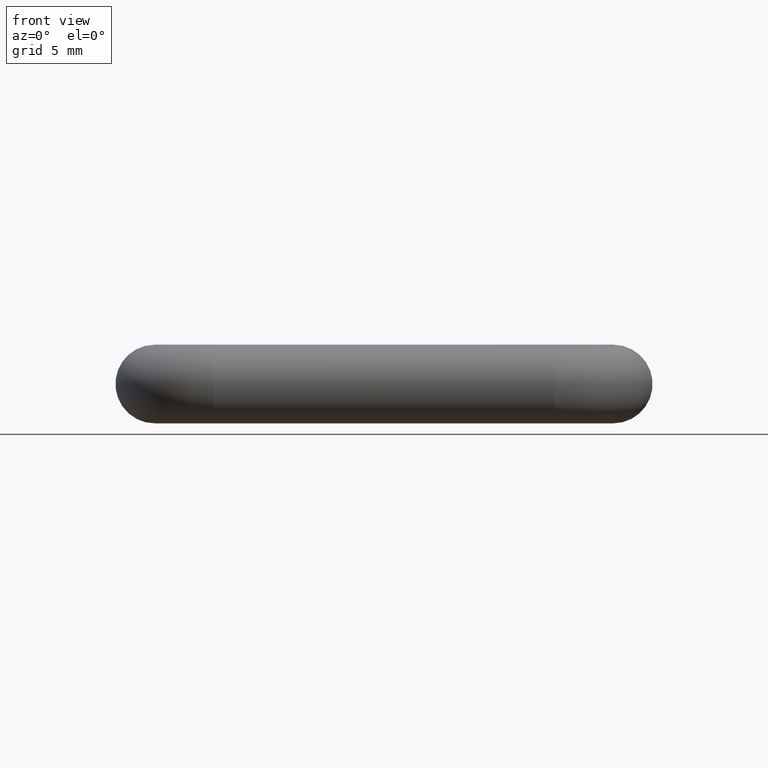
[diagram: clean part render]
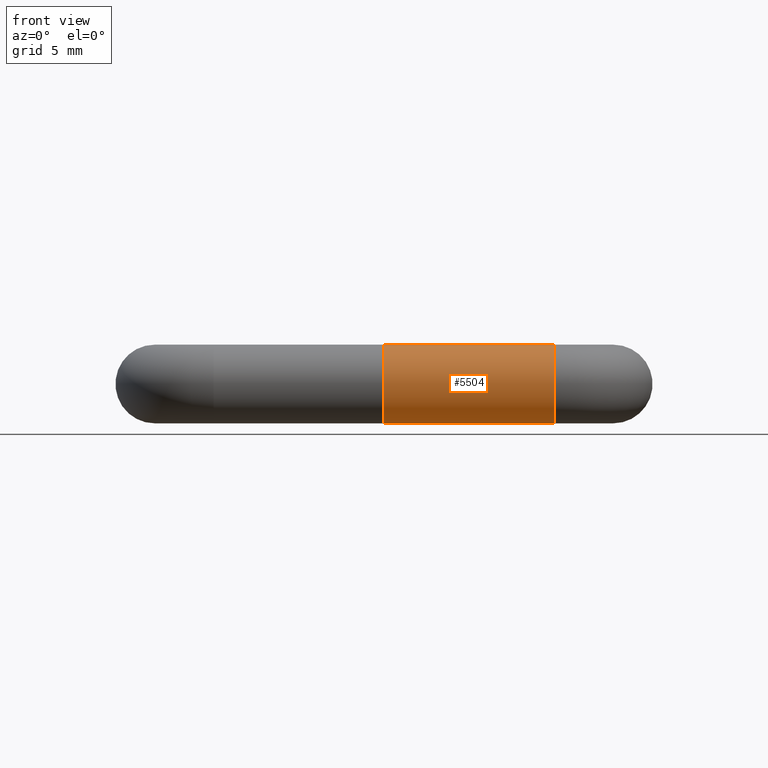
[diagram: same view with one face highlighted and labeled with its STEP entity id]
A machine part, front view. The second image highlights one B-rep face of the part: STEP entity #5504.
In plain terms, the highlighted cylindrical surface (bore or boss wall) has radius 2 mm, axis along (-1, -0, -0).
Its self-contained STEP definition (entity closure, byte-faithful):
#15 = CARTESIAN_POINT ( 'NONE',  ( 1.567377904642425700, 3.981558145509734200, -0.2709762268132759300 ) ) ;
#21 = EDGE_CURVE ( 'NONE', #3868, #9993, #4451, .T. ) ;
#25 = ORIENTED_EDGE ( 'NONE', *, *, #2863, .F. ) ;
#48 = CARTESIAN_POINT ( 'NONE',  ( 1.595915547958127500, 3.996902927270146800, -0.1114877634609954400 ) ) ;
#51 = VERTEX_POINT ( 'NONE', #7147 ) ;
#82 = CARTESIAN_POINT ( 'NONE',  ( 0.2962948104395614100, 3.981576364413640600, -0.2708420080803531900 ) ) ;
#88 = ORIENTED_EDGE ( 'NONE', *, *, #2275, .F. ) ;
#100 = VERTEX_POINT ( 'NONE', #1222 ) ;
#101 = CARTESIAN_POINT ( 'NONE',  ( 8.660254037844334000, 4.000000000000000000, -7.256253074635414900E-016 ) ) ;
#128 = VERTEX_POINT ( 'NONE', #8096 ) ;
#139 = CARTESIAN_POINT ( 'NONE',  ( 8.660254037844334000, 4.000000000000000000, -6.882382537395717900E-016 ) ) ;
#148 = VERTEX_POINT ( 'NONE', #4665 ) ;
#157 = CARTESIAN_POINT ( 'NONE',  ( 0.3366109681443744700, 3.999988938514548400, 0.006653045764452780400 ) ) ;
#184 = CARTESIAN_POINT ( 'NONE',  ( 0.7033460924908433400, 3.981576364413640600, -0.2708420080803525300 ) ) ;
#201 = CARTESIAN_POINT ( 'NONE',  ( 0.5813690245760107000, 3.999969524392379400, -0.01104090132344854600 ) ) ;
#241 = CARTESIAN_POINT ( 'NONE',  ( 0.5311277210202988200, 3.999988493665080500, 0.006784188034187494900 ) ) ;
#273 = CARTESIAN_POINT ( 'NONE',  ( 0.8257191393821969900, 3.997018523621627600, -0.1111769674444958000 ) ) ;
#284 = CARTESIAN_POINT ( 'NONE',  ( 0.2492528760846173300, 3.999392873006619300, -0.05132271581417635600 ) ) ;
#285 = ORIENTED_EDGE ( 'NONE', *, *, #3996, .F. ) ;
#313 = CARTESIAN_POINT ( 'NONE',  ( 0.7613012284685960500, 3.999998725372322400, 0.002257987849199961600 ) ) ;
#338 = EDGE_LOOP ( 'NONE', ( #9051, #4514, #4253, #6128, #4351, #6693, #3853, #8687, #4109, #5692 ) ) ;
#347 = CARTESIAN_POINT ( 'NONE',  ( 1.406022970085469600, 3.981504395237832400, -0.2713675213675220100 ) ) ;
#366 = CARTESIAN_POINT ( 'NONE',  ( 0.2571240304319956100, 3.999658153789186000, -0.03697658701360247200 ) ) ;
#390 = ORIENTED_EDGE ( 'NONE', *, *, #7245, .F. ) ;
#406 = CARTESIAN_POINT ( 'NONE',  ( 1.591821227577104200, 3.995043946327846200, -0.1410914540310343200 ) ) ;
#413 = VERTEX_POINT ( 'NONE', #775 ) ;
#427 = ORIENTED_EDGE ( 'NONE', *, *, #8195, .F. ) ;
#436 = CARTESIAN_POINT ( 'NONE',  ( 0.5662645735929305900, 4.000002193865281400, -0.0008142082656098650200 ) ) ;
#468 = VERTEX_POINT ( 'NONE', #6382 ) ;
#480 = EDGE_LOOP ( 'NONE', ( #8659, #10579, #7242, #2697, #8924, #7672 ) ) ;
#509 =( BOUNDED_CURVE ( )  B_SPLINE_CURVE ( 3, ( #6833, #5886, #3311, #6862 ),
 .UNSPECIFIED., .F., .F. ) 
 B_SPLINE_CURVE_WITH_KNOTS ( ( 4, 4 ),
 ( 4.593385000602282300, 4.710136416046527300 ),
 .UNSPECIFIED. ) 
 CURVE ( )  GEOMETRIC_REPRESENTATION_ITEM ( )  RATIONAL_B_SPLINE_CURVE ( ( 1.000000000000000000, 0.9988644147842793400, 0.9988644147842793400, 1.000000000000000000 ) ) 
 REPRESENTATION_ITEM ( '' )  );
#529 = CARTESIAN_POINT ( 'NONE',  ( 1.842161334764884600, 3.998085175329579900, -0.08984756182773907800 ) ) ;
#545 = CARTESIAN_POINT ( 'NONE',  ( 0.0000000000000000000, 3.747572776708515600, 1.007237960741799400 ) ) ;
#561 = CARTESIAN_POINT ( 'NONE',  ( 1.664579854189589100, 3.997574131462345600, -0.09976991188990529100 ) ) ;
#606 = VERTEX_POINT ( 'NONE', #10928 ) ;
#608 = CARTESIAN_POINT ( 'NONE',  ( -0.0000000000000000000, 3.947945353336633100, 0.5234957687185608500 ) ) ;
#617 = VERTEX_POINT ( 'NONE', #3061 ) ;
#622 = CARTESIAN_POINT ( 'NONE',  ( 1.664003010049071300, 3.993577798420052000, -0.1631221161782926100 ) ) ;
#625 = CARTESIAN_POINT ( 'NONE',  ( 1.795514120873592100, 4.000000937023850500, -0.005350758482386074400 ) ) ;
#630 = CARTESIAN_POINT ( 'NONE',  ( 1.723735546847684500, 3.999999419179446100, 0.001524231697686114600 ) ) ;
#645 = CARTESIAN_POINT ( 'NONE',  ( -0.0000000000000000000, 3.599333684796359300, 1.229093439949830100 ) ) ;
#669 = VERTEX_POINT ( 'NONE', #6658 ) ;
#674 = CARTESIAN_POINT ( 'NONE',  ( 0.3848997211970270900, 3.999937898476405400, -0.01676967891826624400 ) ) ;
#697 = ORIENTED_EDGE ( 'NONE', *, *, #6426, .F. ) ;
#720 = CARTESIAN_POINT ( 'NONE',  ( 0.6461939102564099300, 3.995626956699227100, -0.1321856637286330200 ) ) ;
#750 = CARTESIAN_POINT ( 'NONE',  ( 0.0000000000000000000, 1.476504231281438500, -1.947945353336631500 ) ) ;
#757 = CARTESIAN_POINT ( 'NONE',  ( 1.140477466829716800, 4.000296445592201900, -0.08400048770609783200 ) ) ;
#760 = LINE ( 'NONE', #4219, #1184 ) ;
#769 = CARTESIAN_POINT ( 'NONE',  ( 1.545598628289284400, 3.985113395280814400, -0.2435668447793044900 ) ) ;
#775 = CARTESIAN_POINT ( 'NONE',  ( 1.583153879540598600, 3.997607960463498000, -0.09778771033653918500 ) ) ;
#776 = VERTEX_POINT ( 'NONE', #2652 ) ;
#778 = B_SPLINE_CURVE_WITH_KNOTS ( 'NONE', 3,
 ( #11207, #7625, #5977, #2459, #7545, #4105, #10279, #4138, #10320, #8422, #3323, #3255, #4076, #5936, #4944, #3189 ),
 .UNSPECIFIED., .F., .F.,
 ( 4, 3, 3, 3, 3, 4 ),
 ( 0.0000000000000000000, 2.985510536497333300E-005, 6.008666382526062300E-005, 8.666204936500174200E-005, 0.0001162854193957235800, 0.0001371461474366746000 ),
 .UNSPECIFIED. ) ;
#781 = VERTEX_POINT ( 'NONE', #3379 ) ;
#797 = CARTESIAN_POINT ( 'NONE',  ( 0.6462887063319608900, 3.996697441978118700, -0.1160243855760193800 ) ) ;
#804 = EDGE_CURVE ( 'NONE', #4521, #6621, #9619, .T. ) ;
#805 = CARTESIAN_POINT ( 'NONE',  ( 1.080275943424113400, 4.000003402607309700, -0.0007420195107601845900 ) ) ;
#807 = CARTESIAN_POINT ( 'NONE',  ( 1.495079001699298700, 3.990764980295553200, -0.1921894259670420300 ) ) ;
#813 = CARTESIAN_POINT ( 'NONE',  ( 1.608066331756645900, 3.996057086288663700, -0.1257259168959402000 ) ) ;
#859 = LINE ( 'NONE', #7066, #1678 ) ;
#921 = B_SPLINE_CURVE_WITH_KNOTS ( 'NONE', 3,
 ( #8126, #5620, #2075, #7226, #8090, #2904 ),
 .UNSPECIFIED., .F., .F.,
 ( 4, 2, 4 ),
 ( 0.0000000000000000000, 9.284821811943993900E-005, 0.0001856964362388798800 ),
 .UNSPECIFIED. ) ;
#936 = CARTESIAN_POINT ( 'NONE',  ( 1.614006633857422800, 3.995588069359698100, -0.1329957601632312500 ) ) ;
#971 = CARTESIAN_POINT ( 'NONE',  ( 1.589757256938651300, 3.982259826702099200, -0.2658288646094266200 ) ) ;
#977 = CARTESIAN_POINT ( 'NONE',  ( 1.460296474358974600, 4.000000000000000000, -7.256253074635414900E-016 ) ) ;
#982 = B_SPLINE_CURVE_WITH_KNOTS ( 'NONE', 3,
 ( #5536, #10798, #7405, #6421, #1208, #7294 ),
 .UNSPECIFIED., .F., .F.,
 ( 4, 2, 4 ),
 ( 0.0000000000000000000, 9.300976045372545200E-005, 0.0001860195209074509000 ),
 .UNSPECIFIED. ) ;
#1005 = VECTOR ( 'NONE', #8896, 1000.000000000000000 ) ;
#1010 = CARTESIAN_POINT ( 'NONE',  ( 1.539032361746886600, 3.999496161823211900, -0.05069885267519604700 ) ) ;
#1014 = EDGE_CURVE ( 'NONE', #6882, #7133, #7928, .T. ) ;
#1032 = CARTESIAN_POINT ( 'NONE',  ( 0.6124977385430439000, 3.999259039059289500, -0.05605873352823484400 ) ) ;
#1091 = DIRECTION ( 'NONE',  ( 0.0000000000000000000, 0.0000000000000000000, 1.000000000000000000 ) ) ;
#1126 = CARTESIAN_POINT ( 'NONE',  ( 1.569599895259294400, 3.996617052703491900, -0.1164873385390722800 ) ) ;
#1129 = CARTESIAN_POINT ( 'NONE',  ( 1.233026175213675100, 3.982421665469337400, -0.2645833333333339500 ) ) ;
#1138 = EDGE_LOOP ( 'NONE', ( #2568, #7239, #3988, #427, #9147, #6167, #88, #8519, #6000, #6408, #7286, #6451 ) ) ;
#1165 = CARTESIAN_POINT ( 'NONE',  ( 1.610851526642587400, 3.992573200450181900, -0.1723930367079187500 ) ) ;
#1184 = VECTOR ( 'NONE', #6048, 1000.000000000000000 ) ;
#1208 = CARTESIAN_POINT ( 'NONE',  ( 0.5626859026331024700, 3.981580136304106300, -0.2708144660314769100 ) ) ;
#1219 = DIRECTION ( 'NONE',  ( -1.000000000000000000, -0.0000000000000000000, -0.0000000000000000000 ) ) ;
#1222 = CARTESIAN_POINT ( 'NONE',  ( 1.636685363247863500, 3.990693740399863900, -0.1927133413461545600 ) ) ;
#1230 = CARTESIAN_POINT ( 'NONE',  ( 0.1407719017094011800, 4.000000000000000000, -4.639159313957536800E-016 ) ) ;
#1238 = CARTESIAN_POINT ( 'NONE',  ( 0.2900442703995976800, 4.000002090970658800, -0.001981521976276719600 ) ) ;
#1265 = VERTEX_POINT ( 'NONE', #1441 ) ;
#1269 = CARTESIAN_POINT ( 'NONE',  ( 1.562907318376068700, 3.997000131030608900, -0.1095010349893169700 ) ) ;
#1277 = EDGE_CURVE ( 'NONE', #6750, #6750, #1353, .T. ) ;
#1291 = CARTESIAN_POINT ( 'NONE',  ( 1.093950320512820500, 3.999988493665078700, 0.006784188034187383000 ) ) ;
#1313 = DIRECTION ( 'NONE',  ( 1.000000000000000000, 0.0000000000000000000, 0.0000000000000000000 ) ) ;
#1318 = CARTESIAN_POINT ( 'NONE',  ( 0.4189236111111110900, 3.995626956699227100, -0.1321856637286329400 ) ) ;
#1321 = CARTESIAN_POINT ( 'NONE',  ( 0.09185154580662398300, 3.982421665469337400, -0.2645833333333337800 ) ) ;
#1323 = CIRCLE ( 'NONE', #1346, 2.000000000000000000 ) ;
#1339 = CARTESIAN_POINT ( 'NONE',  ( 1.382278311965811500, 2.000000000000000000, 0.0000000000000000000 ) ) ;
#1346 = AXIS2_PLACEMENT_3D ( 'NONE', #9000, #3770, #9876 ) ;
#1349 = FACE_BOUND ( 'NONE', #338, .T. ) ;
#1353 = B_SPLINE_CURVE_WITH_KNOTS ( 'NONE', 3,
 ( #10169, #7542, #4868, #7621, #5854, #9256, #3075, #2379, #5743, #3184, #608, #545, #645, #1480, #3958, #10063, #6634, #4827, #1402, #7505, #11121, #7738, #5976, #8562, #3283, #7815, #6011, #6837, #11165, #2531, #2491, #750, #2423, #2456 ),
 .UNSPECIFIED., .T., .F.,
 ( 4, 2, 2, 2, 2, 2, 2, 2, 2, 2, 2, 2, 2, 2, 2, 2, 4 ),
 ( 0.0000000000000000000, 0.06250000000000001400, 0.1250000000000000300, 0.1875000000000000600, 0.2500000000000000600, 0.3125000000000000600, 0.3750000000000001700, 0.4375000000000002200, 0.5000000000000003300, 0.5625000000000003300, 0.6250000000000003300, 0.6875000000000003300, 0.7500000000000004400, 0.8125000000000003300, 0.8750000000000002200, 0.9375000000000001100, 1.000000000000000000 ),
 .UNSPECIFIED. ) ;
#1380 = EDGE_CURVE ( 'NONE', #5011, #8165, #760, .T. ) ;
#1388 = DIRECTION ( 'NONE',  ( -1.000000000000000000, -0.0000000000000000000, -0.0000000000000000000 ) ) ;
#1397 = VERTEX_POINT ( 'NONE', #9402 ) ;
#1401 = VERTEX_POINT ( 'NONE', #9471 ) ;
#1402 = CARTESIAN_POINT ( 'NONE',  ( -0.0000000000000000000, 1.476504231281440000, 1.947945353336631800 ) ) ;
#1441 = CARTESIAN_POINT ( 'NONE',  ( 0.1170272435897436200, 4.000000000000000000, -4.639159313957536800E-016 ) ) ;
#1453 = VECTOR ( 'NONE', #3916, 1000.000000000000000 ) ;
#1470 = CARTESIAN_POINT ( 'NONE',  ( 1.562653018578062000, 3.985055032731929600, -0.2440421134874107300 ) ) ;
#1480 = CARTESIAN_POINT ( 'NONE',  ( 0.0000000000000000000, 3.229093439949830600, 1.599333684796360000 ) ) ;
#1537 = CARTESIAN_POINT ( 'NONE',  ( 0.3542499464173138900, 3.999998725372322400, 0.002257987849200190100 ) ) ;
#1588 = VERTEX_POINT ( 'NONE', #1318 ) ;
#1601 = VECTOR ( 'NONE', #1388, 1000.000000000000000 ) ;
#1603 = VERTEX_POINT ( 'NONE', #6853 ) ;
#1607 = CARTESIAN_POINT ( 'NONE',  ( 0.7778859157453895700, 4.000000937023850500, -0.005350758482387029400 ) ) ;
#1608 = CARTESIAN_POINT ( 'NONE',  ( 1.093950320512820500, 3.999988493665078700, 0.006784188034187383000 ) ) ;
#1615 =( BOUNDED_CURVE ( )  B_SPLINE_CURVE ( 3, ( #10296, #805, #5060, #1608 ),
 .UNSPECIFIED., .F., .F. ) 
 B_SPLINE_CURVE_WITH_KNOTS ( ( 4, 4 ),
 ( 1.568543762456734200, 1.574188427317100100 ),
 .UNSPECIFIED. ) 
 CURVE ( )  GEOMETRIC_REPRESENTATION_ITEM ( )  RATIONAL_B_SPLINE_CURVE ( ( 1.000000000000000000, 0.9999973448149802600, 0.9999973448149802600, 1.000000000000000000 ) ) 
 REPRESENTATION_ITEM ( '' )  );
#1617 = FACE_BOUND ( 'NONE', #7247, .T. ) ;
#1619 = CARTESIAN_POINT ( 'NONE',  ( 1.632364762134269400, 3.993120137434585700, -0.1657471500593513100 ) ) ;
#1620 = CARTESIAN_POINT ( 'NONE',  ( 0.4527785171102538500, 3.999392873006618400, -0.05132271581419307200 ) ) ;
#1635 = EDGE_CURVE ( 'NONE', #10073, #3622, #3860, .T. ) ;
#1655 = CARTESIAN_POINT ( 'NONE',  ( 0.4458541411654196000, 3.998244875256569100, -0.08377003348969411200 ) ) ;
#1670 = CARTESIAN_POINT ( 'NONE',  ( 0.6745584212980784100, 3.999905182853284600, -0.02054265173955207100 ) ) ;
#1678 = VECTOR ( 'NONE', #4513, 1000.000000000000000 ) ;
#1680 = CARTESIAN_POINT ( 'NONE',  ( 1.500450732753738200, 3.988985679773567700, -0.2096090781800961600 ) ) ;
#1690 = CARTESIAN_POINT ( 'NONE',  ( 1.619318970474989700, 3.995044901584820200, -0.1406976924487918200 ) ) ;
#1691 = CARTESIAN_POINT ( 'NONE',  ( 1.401199836404914100, 3.981504395237832400, -0.2713675213675220100 ) ) ;
#1711 = VERTEX_POINT ( 'NONE', #5247 ) ;
#1716 = CARTESIAN_POINT ( 'NONE',  ( 1.752281567174145400, 3.981504395237832400, -0.2713675213675220700 ) ) ;
#1718 = CARTESIAN_POINT ( 'NONE',  ( 0.2391426282051281900, 3.995626956699227100, -0.1321856637286329400 ) ) ;
#1728 = CARTESIAN_POINT ( 'NONE',  ( 0.5194113717830111100, 3.999989552678759400, 0.006469332377823326800 ) ) ;
#1741 = CARTESIAN_POINT ( 'NONE',  ( 0.7336383004497308800, 3.999988551836013900, 0.006767039158600571800 ) ) ;
#1758 = CARTESIAN_POINT ( 'NONE',  ( 1.583153879540598600, 3.997607960463498000, -0.09778771033653918500 ) ) ;
#1760 = CARTESIAN_POINT ( 'NONE',  ( 1.604931315518761400, 3.983403022887183300, -0.2571607757812545700 ) ) ;
#1767 = AXIS2_PLACEMENT_3D ( 'NONE', #2658, #8075, #2696 ) ;
#1801 = ORIENTED_EDGE ( 'NONE', *, *, #9092, .F. ) ;
#1822 = CARTESIAN_POINT ( 'NONE',  ( 0.2410073156095696200, 3.990668648882811400, -0.1949683410862916300 ) ) ;
#1833 = CARTESIAN_POINT ( 'NONE',  ( 1.623665539586383300, 3.985854411265979300, -0.2375588215426071800 ) ) ;
#1844 = DIRECTION ( 'NONE',  ( -1.000000000000000000, 0.0000000000000000000, 0.0000000000000000000 ) ) ;
#1865 = EDGE_CURVE ( 'NONE', #8792, #6433, #9758, .T. ) ;
#1870 = DIRECTION ( 'NONE',  ( -1.000000000000000000, 0.0000000000000000000, 0.0000000000000000000 ) ) ;
#1903 = ORIENTED_EDGE ( 'NONE', *, *, #10795, .F. ) ;
#1933 = CARTESIAN_POINT ( 'NONE',  ( 0.5884253622226666100, 3.999937898476405400, -0.01676967891826508200 ) ) ;
#1946 = CIRCLE ( 'NONE', #7328, 2.000000000000000000 ) ;
#1987 = AXIS2_PLACEMENT_3D ( 'NONE', #5577, #10728, #3785 ) ;
#1989 = CARTESIAN_POINT ( 'NONE',  ( 0.2447819313555982300, 3.998922607355542200, -0.06760345652708099600 ) ) ;
#1993 = CARTESIAN_POINT ( 'NONE',  ( 0.3878339991366245900, 3.984430612768254900, -0.2506319753723916200 ) ) ;
#1994 = VECTOR ( 'NONE', #6537, 1000.000000000000000 ) ;
#2003 = VERTEX_POINT ( 'NONE', #9942 ) ;
#2020 = CYLINDRICAL_SURFACE ( 'NONE', #1767, 2.000000000000000000 ) ;
#2024 = B_SPLINE_CURVE_WITH_KNOTS ( 'NONE', 3,
 ( #7216, #9842, #10797, #2892, #1989, #284, #366, #10001, #5574, #5609, #3818, #1238, #8115, #9084, #8153, #6455, #7248, #4615, #3782 ),
 .UNSPECIFIED., .F., .F.,
 ( 4, 3, 3, 3, 3, 3, 4 ),
 ( 0.0000000000000000000, 4.859090994199913100E-005, 9.810948765831870700E-005, 0.0001269501650352118900, 0.0001560111243095911400, 0.0001819683409609483500, 0.0001849612603837594600 ),
 .UNSPECIFIED. ) ;
#2041 = CARTESIAN_POINT ( 'NONE',  ( 0.9098357164816625000, 3.999819499736762200, -0.08238344319335518000 ) ) ;
#2075 = CARTESIAN_POINT ( 'NONE',  ( 0.4713057876384635900, 3.984473817091510400, -0.2502758337297271200 ) ) ;
#2102 = CARTESIAN_POINT ( 'NONE',  ( 1.601235761410778600, 3.994276818342045000, -0.1517145909419262100 ) ) ;
#2130 = CARTESIAN_POINT ( 'NONE',  ( 0.1170272435897443100, 3.985854758303853300, -0.2374465811965816300 ) ) ;
#2215 = CARTESIAN_POINT ( 'NONE',  ( 1.778929433596800200, 3.999998725372322400, 0.002257987849200338000 ) ) ;
#2231 = CARTESIAN_POINT ( 'NONE',  ( 1.406022970085469600, 3.999067772290389100, -0.06105769230769299300 ) ) ;
#2252 = CARTESIAN_POINT ( 'NONE',  ( 1.720974297619050700, 3.981576364413639700, -0.2708420080803527500 ) ) ;
#2275 = EDGE_CURVE ( 'NONE', #1603, #413, #8807, .T. ) ;
#2291 = FACE_OUTER_BOUND ( 'NONE', #2593, .T. ) ;
#2293 = DIRECTION ( 'NONE',  ( 1.000000000000000000, 0.0000000000000000000, 0.0000000000000000000 ) ) ;
#2308 = B_SPLINE_CURVE_WITH_KNOTS ( 'NONE', 3,
 ( #10241, #3227, #9292, #11083, #5856, #5894 ),
 .UNSPECIFIED., .F., .F.,
 ( 4, 2, 4 ),
 ( 0.0000000000000000000, 9.300976045372596700E-005, 0.0001860195209074518500 ),
 .UNSPECIFIED. ) ;
#2326 = CARTESIAN_POINT ( 'NONE',  ( 1.752281567174145400, 3.981504395237832400, -0.2713675213675220700 ) ) ;
#2332 = CARTESIAN_POINT ( 'NONE',  ( 1.681803517611475200, 3.999658153789185100, -0.03697658701361696700 ) ) ;
#2338 = CARTESIAN_POINT ( 'NONE',  ( 0.4174818475853987500, 3.998085175329579000, -0.08984756182772452000 ) ) ;
#2353 = CARTESIAN_POINT ( 'NONE',  ( 0.8904246794871795200, 3.999988493665078700, 0.006784188034187420300 ) ) ;
#2360 = CARTESIAN_POINT ( 'NONE',  ( 0.3276020799946581200, 3.999988493665080500, 0.006784188034187532200 ) ) ;
#2379 = CARTESIAN_POINT ( 'NONE',  ( 0.0000000000000000000, 3.947945353336631300, -0.5234957687185605200 ) ) ;
#2380 = VERTEX_POINT ( 'NONE', #6685 ) ;
#2423 = CARTESIAN_POINT ( 'NONE',  ( 0.0000000000000000000, 1.738200612200852900, -2.000000000000001300 ) ) ;
#2429 = CARTESIAN_POINT ( 'NONE',  ( 0.8699131109775641900, 3.999994925956047900, -0.004505124866453604300 ) ) ;
#2450 = CARTESIAN_POINT ( 'NONE',  ( 0.3959839766636535400, 3.999753538972378000, -0.03139718725713921300 ) ) ;
#2456 = CARTESIAN_POINT ( 'NONE',  ( 0.0000000000000000000, 2.000000000000000400, -2.000000000000000900 ) ) ;
#2459 = CARTESIAN_POINT ( 'NONE',  ( 1.527296226916626600, 3.982153067358783700, -0.2665881046844124100 ) ) ;
#2491 = CARTESIAN_POINT ( 'NONE',  ( -0.0000000000000000000, 0.9927620392582000600, -1.747572776708514500 ) ) ;
#2499 = CARTESIAN_POINT ( 'NONE',  ( 1.233026175213675100, 3.982421665469337400, -0.2645833333333339500 ) ) ;
#2516 = VERTEX_POINT ( 'NONE', #3686 ) ;
#2521 = CARTESIAN_POINT ( 'NONE',  ( 0.5290975485164998200, 3.999988609921046200, 0.006749892594148707200 ) ) ;
#2531 = CARTESIAN_POINT ( 'NONE',  ( 0.0000000000000000000, 0.7709065600501705500, -1.599333684796360400 ) ) ;
#2545 = CARTESIAN_POINT ( 'NONE',  ( 0.3276020799946581200, 3.981504395237832400, -0.2713675213675217900 ) ) ;
#2554 = FACE_OUTER_BOUND ( 'NONE', #4537, .T. ) ;
#2568 = ORIENTED_EDGE ( 'NONE', *, *, #3396, .F. ) ;
#2579 = CARTESIAN_POINT ( 'NONE',  ( 0.3276020799946581200, 3.981504395237832400, -0.2713675213675217900 ) ) ;
#2583 = CARTESIAN_POINT ( 'NONE',  ( 1.636685363247863500, 3.990693740399863900, -0.1927133413461545600 ) ) ;
#2584 = CARTESIAN_POINT ( 'NONE',  ( 0.5301126594240924700, 3.999988551836013900, 0.006767039158600651600 ) ) ;
#2586 = CARTESIAN_POINT ( 'NONE',  ( 1.556759147970085700, 3.981504395237832400, -0.2713675213675220100 ) ) ;
#2593 = EDGE_LOOP ( 'NONE', ( #7534 ) ) ;
#2595 = ORIENTED_EDGE ( 'NONE', *, *, #10390, .F. ) ;
#2599 = CARTESIAN_POINT ( 'NONE',  ( 0.7316084086963005100, 3.999988708689889100, 0.006720499455713824800 ) ) ;
#2622 = CARTESIAN_POINT ( 'NONE',  ( 1.572599456188160900, 3.981678898595514500, -0.2700902494686549000 ) ) ;
#2632 = CARTESIAN_POINT ( 'NONE',  ( 0.7948852811879063600, 3.984430612768254900, -0.2506319753723926800 ) ) ;
#2652 = CARTESIAN_POINT ( 'NONE',  ( 0.5311277210202988200, 3.981504395237832400, -0.2713675213675218500 ) ) ;
#2658 = CARTESIAN_POINT ( 'NONE',  ( 8.660254037844334000, 2.000000000000000000, 0.0000000000000000000 ) ) ;
#2663 = CARTESIAN_POINT ( 'NONE',  ( 1.581206465151197700, 3.981877943435448800, -0.2686298377731256000 ) ) ;
#2696 = DIRECTION ( 'NONE',  ( 0.0000000000000000000, 0.0000000000000000000, 1.000000000000000000 ) ) ;
#2697 = ORIENTED_EDGE ( 'NONE', *, *, #9770, .F. ) ;
#2703 = DIRECTION ( 'NONE',  ( 1.000000000000000000, 0.0000000000000000000, 0.0000000000000000000 ) ) ;
#2711 = CARTESIAN_POINT ( 'NONE',  ( 0.7346533620459397800, 3.981504395237832400, -0.2713675213675219000 ) ) ;
#2716 = B_SPLINE_CURVE_WITH_KNOTS ( 'NONE', 3,
 ( #10125, #11039, #561, #3245, #6796, #3303, #2332, #5916, #4963, #11105, #5878, #8505, #630, #8441, #3271, #10227, #8470, #9389, #6660 ),
 .UNSPECIFIED., .F., .F.,
 ( 4, 3, 3, 3, 3, 3, 4 ),
 ( 0.0000000000000000000, 4.859090994199133100E-005, 9.810948765830194200E-005, 0.0001269501650351919700, 0.0001560111243095695400, 0.0001819683409609345000, 0.0001849612603837651500 ),
 .UNSPECIFIED. ) ;
#2790 = B_SPLINE_CURVE_WITH_KNOTS ( 'NONE', 3,
 ( #241, #5357, #8028, #4603, #436, #9707, #201, #1933, #8284, #2844, #4490, #1032, #9831, #5447, #4528, #10596 ),
 .UNSPECIFIED., .F., .F.,
 ( 4, 3, 3, 3, 3, 4 ),
 ( 0.0000000000000000000, 2.702952788492769000E-005, 5.405190088826093100E-005, 8.122312043922375700E-005, 0.0001226594902014597800, 0.0001856899027649852500 ),
 .UNSPECIFIED. ) ;
#2810 = CARTESIAN_POINT ( 'NONE',  ( 8.660254037844334000, 3.982421665469337400, -0.2645833333333338900 ) ) ;
#2834 = EDGE_CURVE ( 'NONE', #6813, #6734, #10836, .T. ) ;
#2840 = CARTESIAN_POINT ( 'NONE',  ( 0.8245331296366795700, 3.998085175329579000, -0.08984756182771962100 ) ) ;
#2844 = CARTESIAN_POINT ( 'NONE',  ( 0.5995096176892930100, 3.999753538972378000, -0.03139718725713744300 ) ) ;
#2859 = CARTESIAN_POINT ( 'NONE',  ( 0.3276020799946581200, 3.981504395237832400, -0.2713675213675217900 ) ) ;
#2863 = EDGE_CURVE ( 'NONE', #7133, #51, #9952, .T. ) ;
#2884 = EDGE_CURVE ( 'NONE', #2380, #10073, #7142, .T. ) ;
#2892 = CARTESIAN_POINT ( 'NONE',  ( 0.2423285001397803300, 3.998244875256568200, -0.08377003348968434200 ) ) ;
#2901 = EDGE_CURVE ( 'NONE', #3071, #6882, #9111, .T. ) ;
#2904 = CARTESIAN_POINT ( 'NONE',  ( 0.4426682692307689600, 3.995626956699227100, -0.1321856637286330000 ) ) ;
#2974 = DIRECTION ( 'NONE',  ( 0.0000000000000000000, 0.0000000000000000000, 1.000000000000000000 ) ) ;
#2995 = CARTESIAN_POINT ( 'NONE',  ( 0.8193935819519314600, 3.998794141934479900, -0.06944046492482675000 ) ) ;
#3006 = DIRECTION ( 'NONE',  ( 0.0000000000000000000, 0.0000000000000000000, -1.000000000000000000 ) ) ;
#3052 = CARTESIAN_POINT ( 'NONE',  ( 8.660254037844334000, 3.985854758303853300, -0.2374465811965818000 ) ) ;
#3061 = CARTESIAN_POINT ( 'NONE',  ( 0.7346533620459397800, 3.981504395237832400, -0.2713675213675219000 ) ) ;
#3071 = VERTEX_POINT ( 'NONE', #3492 ) ;
#3075 = CARTESIAN_POINT ( 'NONE',  ( -0.0000000000000000000, 3.747572776708515200, -1.007237960741799200 ) ) ;
#3096 = VERTEX_POINT ( 'NONE', #4420 ) ;
#3176 = CARTESIAN_POINT ( 'NONE',  ( 1.612861298886398400, 3.990612281416377400, -0.1935761454508771500 ) ) ;
#3184 = CARTESIAN_POINT ( 'NONE',  ( 0.0000000000000000000, 4.000000000000001800, 0.2617993877991498000 ) ) ;
#3189 = CARTESIAN_POINT ( 'NONE',  ( 1.470472756410256700, 3.991594241779819400, -0.1831730769230776300 ) ) ;
#3211 = CARTESIAN_POINT ( 'NONE',  ( 1.612200141433655100, 3.990023792412426200, -0.1995126703559167200 ) ) ;
#3227 = CARTESIAN_POINT ( 'NONE',  ( 1.843229744840605600, 3.993565473953218700, -0.1633081805179891800 ) ) ;
#3231 = ORIENTED_EDGE ( 'NONE', *, *, #8731, .F. ) ;
#3242 = CARTESIAN_POINT ( 'NONE',  ( 8.660254037844334000, 3.998054488738767500, -0.08819444444444513000 ) ) ;
#3245 = CARTESIAN_POINT ( 'NONE',  ( 1.667007987319266200, 3.998244875256569100, -0.08377003348969241900 ) ) ;
#3255 = CARTESIAN_POINT ( 'NONE',  ( 1.475096203638835800, 3.988584912061334400, -0.2135959584889271500 ) ) ;
#3271 = CARTESIAN_POINT ( 'NONE',  ( 1.740565217936854500, 3.999989552678759400, 0.006469332377822894900 ) ) ;
#3279 = CARTESIAN_POINT ( 'NONE',  ( 0.5311277210202988200, 3.999988493665080500, 0.006784188034187494900 ) ) ;
#3283 = CARTESIAN_POINT ( 'NONE',  ( -0.0000000000000000000, 9.147955830346474500E-017, 0.2617993877991508500 ) ) ;
#3303 = CARTESIAN_POINT ( 'NONE',  ( 1.673932363264101000, 3.999392873006618400, -0.05132271581419010200 ) ) ;
#3307 = CARTESIAN_POINT ( 'NONE',  ( 1.611276026547362200, 3.989490552399282700, -0.2048314318728147200 ) ) ;
#3311 = CARTESIAN_POINT ( 'NONE',  ( 1.113361357507303400, 3.999819499736762200, -0.08238344319335513800 ) ) ;
#3323 = CARTESIAN_POINT ( 'NONE',  ( 1.478836741617442800, 3.987548449801590500, -0.2229844847924490300 ) ) ;
#3326 = CARTESIAN_POINT ( 'NONE',  ( 0.6563041581358903800, 3.999392873006618400, -0.05132271581420751900 ) ) ;
#3366 = CARTESIAN_POINT ( 'NONE',  ( 0.6518332134068742800, 3.998922607355541300, -0.06760345652710508800 ) ) ;
#3379 = CARTESIAN_POINT ( 'NONE',  ( 0.8666800213675213100, 3.985854758303853300, -0.2374465811965818000 ) ) ;
#3382 = VERTEX_POINT ( 'NONE', #8017 ) ;
#3394 = CARTESIAN_POINT ( 'NONE',  ( 0.6886938333840195700, 3.999997016928211300, -0.007428649729504455000 ) ) ;
#3396 = EDGE_CURVE ( 'NONE', #3622, #669, #6237, .T. ) ;
#3404 = CARTESIAN_POINT ( 'NONE',  ( 1.496762403843727900, 3.989857013309512800, -0.2013409729036103300 ) ) ;
#3412 = CARTESIAN_POINT ( 'NONE',  ( 1.624667643452262900, 3.994498018544689000, -0.1484523059181906100 ) ) ;
#3413 = CARTESIAN_POINT ( 'NONE',  ( 0.5280827676706673100, 3.999988708689889100, 0.006720499455714091000 ) ) ;
#3462 = LINE ( 'NONE', #3052, #8674 ) ;
#3480 = EDGE_CURVE ( 'NONE', #413, #100, #7788, .T. ) ;
#3492 = CARTESIAN_POINT ( 'NONE',  ( 0.9893254206730769400, 3.985854758303852400, -0.2374465811965818000 ) ) ;
#3515 = CARTESIAN_POINT ( 'NONE',  ( 0.7919510032483093600, 3.999937898476405400, -0.01676967891826720800 ) ) ;
#3549 = ORIENTED_EDGE ( 'NONE', *, *, #8600, .F. ) ;
#3589 = CARTESIAN_POINT ( 'NONE',  ( 0.7326231895421355700, 3.999988609921046200, 0.006749892594148582300 ) ) ;
#3622 = VERTEX_POINT ( 'NONE', #5993 ) ;
#3627 = DIRECTION ( 'NONE',  ( 1.000000000000000000, 0.0000000000000000000, 0.0000000000000000000 ) ) ;
#3686 = CARTESIAN_POINT ( 'NONE',  ( 1.460296474358974600, 4.000000000000000000, -7.256253074635414900E-016 ) ) ;
#3710 = CARTESIAN_POINT ( 'NONE',  ( 1.070205662393162400, 3.982421665469337400, -0.2645833333333339500 ) ) ;
#3714 = ORIENTED_EDGE ( 'NONE', *, *, #10996, .F. ) ;
#3763 = CARTESIAN_POINT ( 'NONE',  ( 1.436551816239316000, 3.998054488738767500, -0.08819444444444513000 ) ) ;
#3767 = LINE ( 'NONE', #4819, #1453 ) ;
#3770 = DIRECTION ( 'NONE',  ( 1.000000000000000000, 0.0000000000000000000, 0.0000000000000000000 ) ) ;
#3782 = CARTESIAN_POINT ( 'NONE',  ( 0.3276020799946581200, 3.999988493665080500, 0.006784188034187532200 ) ) ;
#3785 = DIRECTION ( 'NONE',  ( 0.0000000000000000000, 0.0000000000000000000, 1.000000000000000000 ) ) ;
#3818 = CARTESIAN_POINT ( 'NONE',  ( 0.2816425513327654500, 3.999997016928211300, -0.007428649729484543800 ) ) ;
#3853 = ORIENTED_EDGE ( 'NONE', *, *, #8330, .F. ) ;
#3860 = B_SPLINE_CURVE_WITH_KNOTS ( 'NONE', 3,
 ( #6922, #807, #3404, #1680, #6824, #5994, #5141, #8581, #6791, #11144, #7760, #8654, #769, #5956, #6886, #5910 ),
 .UNSPECIFIED., .F., .F.,
 ( 4, 3, 3, 3, 3, 4 ),
 ( 0.0000000000000000000, 2.728591237765368700E-005, 4.710345630842848100E-005, 6.691736745786067200E-005, 8.586845964831819900E-005, 9.564431471926754100E-005 ),
 .UNSPECIFIED. ) ;
#3868 = VERTEX_POINT ( 'NONE', #10005 ) ;
#3916 = DIRECTION ( 'NONE',  ( 1.000000000000000000, 0.0000000000000000000, 0.0000000000000000000 ) ) ;
#3958 = CARTESIAN_POINT ( 'NONE',  ( -0.0000000000000000000, 3.007237960741799400, 1.747572776708516300 ) ) ;
#3963 = EDGE_CURVE ( 'NONE', #7827, #9815, #9709, .T. ) ;
#3988 = ORIENTED_EDGE ( 'NONE', *, *, #2884, .F. ) ;
#3996 = EDGE_CURVE ( 'NONE', #7426, #1588, #9367, .T. ) ;
#4001 = LINE ( 'NONE', #139, #1005 ) ;
#4010 = CARTESIAN_POINT ( 'NONE',  ( 1.692459633792311500, 3.984473817091508600, -0.2502758337297297200 ) ) ;
#4039 = LINE ( 'NONE', #2810, #1994 ) ;
#4076 = CARTESIAN_POINT ( 'NONE',  ( 1.472982177857228700, 3.989569513678219900, -0.2039930151805979300 ) ) ;
#4096 = CARTESIAN_POINT ( 'NONE',  ( 0.4186678573309161000, 3.997018523621627600, -0.1111769674444981800 ) ) ;
#4105 = CARTESIAN_POINT ( 'NONE',  ( 1.508876759923371700, 3.983296531960082800, -0.2580279122409892500 ) ) ;
#4109 = ORIENTED_EDGE ( 'NONE', *, *, #4310, .F. ) ;
#4114 = ORIENTED_EDGE ( 'NONE', *, *, #1380, .F. ) ;
#4128 = CARTESIAN_POINT ( 'NONE',  ( 1.594995406977224100, 3.986779466694972700, -0.2295808152176468100 ) ) ;
#4138 = CARTESIAN_POINT ( 'NONE',  ( 1.494609055493322200, 3.984860370443824800, -0.2456896423636847100 ) ) ;
#4171 = CARTESIAN_POINT ( 'NONE',  ( 0.4089720975174025400, 3.999259039059293000, -0.05605873352823168000 ) ) ;
#4193 = VECTOR ( 'NONE', #5995, 1000.000000000000000 ) ;
#4219 = CARTESIAN_POINT ( 'NONE',  ( 8.660254037844334000, 3.985854758303853300, -0.2374465811965816300 ) ) ;
#4253 = ORIENTED_EDGE ( 'NONE', *, *, #7205, .F. ) ;
#4263 = CARTESIAN_POINT ( 'NONE',  ( 0.6816051026490345100, 3.999950963298823000, -0.01400515620431306900 ) ) ;
#4283 = EDGE_CURVE ( 'NONE', #5206, #2516, #9867, .T. ) ;
#4300 = DIRECTION ( 'NONE',  ( 1.000000000000000000, 0.0000000000000000000, 0.0000000000000000000 ) ) ;
#4310 = EDGE_CURVE ( 'NONE', #6433, #4521, #4001, .T. ) ;
#4314 = CARTESIAN_POINT ( 'NONE',  ( 0.2393235228695843600, 3.993577798420052000, -0.1631221161782907300 ) ) ;
#4328 = EDGE_CURVE ( 'NONE', #9993, #1603, #859, .T. ) ;
#4341 = EDGE_CURVE ( 'NONE', #2516, #3868, #7696, .T. ) ;
#4351 = ORIENTED_EDGE ( 'NONE', *, *, #7223, .F. ) ;
#4355 = CARTESIAN_POINT ( 'NONE',  ( 0.09185154580662398300, 3.982421665469337400, -0.2645833333333337800 ) ) ;
#4372 = CARTESIAN_POINT ( 'NONE',  ( 0.0000000000000000000, 2.000000000000000400, -2.000000000000000000 ) ) ;
#4394 = CARTESIAN_POINT ( 'NONE',  ( 0.7662115436587430000, 3.981580136304107200, -0.2708144660314769600 ) ) ;
#4420 = CARTESIAN_POINT ( 'NONE',  ( 0.8259748931623928100, 3.995626956699227100, -0.1321856637286330200 ) ) ;
#4424 = CARTESIAN_POINT ( 'NONE',  ( 1.628762658464067500, 3.986837752505045400, -0.2292497638173976700 ) ) ;
#4435 = EDGE_CURVE ( 'NONE', #776, #606, #921, .T. ) ;
#4451 = CIRCLE ( 'NONE', #6358, 2.000000000000000000 ) ;
#4469 = CARTESIAN_POINT ( 'NONE',  ( 1.070205662393162400, 2.000000000000000000, 0.0000000000000000000 ) ) ;
#4482 = ORIENTED_EDGE ( 'NONE', *, *, #8743, .F. ) ;
#4490 = CARTESIAN_POINT ( 'NONE',  ( 0.6070621123318649100, 3.999572082682334000, -0.04295452375394019600 ) ) ;
#4513 = DIRECTION ( 'NONE',  ( -1.000000000000000000, -0.0000000000000000000, -0.0000000000000000000 ) ) ;
#4514 = ORIENTED_EDGE ( 'NONE', *, *, #8493, .F. ) ;
#4521 = VERTEX_POINT ( 'NONE', #10926 ) ;
#4528 = CARTESIAN_POINT ( 'NONE',  ( 0.6221934983565566800, 3.997018523621627600, -0.1111769674445002400 ) ) ;
#4536 = CARTESIAN_POINT ( 'NONE',  ( 1.406022970085470100, 2.000000000000000000, 0.0000000000000000000 ) ) ;
#4537 = EDGE_LOOP ( 'NONE', ( #9099 ) ) ;
#4583 = CARTESIAN_POINT ( 'NONE',  ( 0.4185502576611203100, 3.993565473953216900, -0.1633081805179885900 ) ) ;
#4603 = CARTESIAN_POINT ( 'NONE',  ( 0.5577755874429540800, 3.999998725372322400, 0.002257987849200336700 ) ) ;
#4608 = CIRCLE ( 'NONE', #10177, 2.000000000000000000 ) ;
#4615 = CARTESIAN_POINT ( 'NONE',  ( 0.3265870183984577200, 3.999988551836013900, 0.006767039158600790400 ) ) ;
#4620 = CARTESIAN_POINT ( 'NONE',  ( 1.305103783749723900, 3.996918154083172900, -0.1314375628589728200 ) ) ;
#4627 = CARTESIAN_POINT ( 'NONE',  ( 0.8699131109775641900, 3.999994925956047900, -0.004505124866453604300 ) ) ;
#4665 = CARTESIAN_POINT ( 'NONE',  ( 1.752281567174145400, 3.999988493665080500, 0.006784188034187270200 ) ) ;
#4667 = CARTESIAN_POINT ( 'NONE',  ( 1.382278311965811700, 4.000000000000000000, -6.882382537395717900E-016 ) ) ;
#4675 = B_SPLINE_CURVE_WITH_KNOTS ( 'NONE', 3,
 ( #2579, #82, #7046, #1822, #4314, #1718 ),
 .UNSPECIFIED., .F., .F.,
 ( 4, 2, 4 ),
 ( 0.0000000000000000000, 9.284821811943802800E-005, 0.0001856964362388760600 ),
 .UNSPECIFIED. ) ;
#4687 = CARTESIAN_POINT ( 'NONE',  ( 1.612594623272970200, 3.991758979419957900, -0.1815979763098062000 ) ) ;
#4703 = CIRCLE ( 'NONE', #5515, 2.000000000000000000 ) ;
#4782 = CARTESIAN_POINT ( 'NONE',  ( 0.08667958765775027300, 3.983627877874944500, -0.2555456453735248700 ) ) ;
#4797 = ORIENTED_EDGE ( 'NONE', *, *, #10487, .F. ) ;
#4804 = CARTESIAN_POINT ( 'NONE',  ( 1.073438752003205200, 3.999994925956047900, -0.004505124866453641600 ) ) ;
#4819 = CARTESIAN_POINT ( 'NONE',  ( 8.660254037844334000, 3.985854758303853300, -0.2374465811965818200 ) ) ;
#4827 = CARTESIAN_POINT ( 'NONE',  ( 0.0000000000000000000, 1.738200612200850400, 2.000000000000000000 ) ) ;
#4845 = CARTESIAN_POINT ( 'NONE',  ( 1.382278311965811500, 3.999067772290389100, -0.06105769230769299300 ) ) ;
#4848 = CARTESIAN_POINT ( 'NONE',  ( 1.770457338979304600, 3.999995263781031000, 0.005324070854678178200 ) ) ;
#4868 = CARTESIAN_POINT ( 'NONE',  ( -0.0000000000000000000, 2.523495768718561700, -1.947945353336630900 ) ) ;
#4881 = LINE ( 'NONE', #10486, #7903 ) ;
#4924 = CARTESIAN_POINT ( 'NONE',  ( 1.752281567174145400, 3.999988493665080500, 0.006784188034187270200 ) ) ;
#4927 = CARTESIAN_POINT ( 'NONE',  ( 0.6224492521367518400, 3.995626956699227100, -0.1321856637286330000 ) ) ;
#4933 = CARTESIAN_POINT ( 'NONE',  ( 1.612940705128205400, 3.990897837819232600, -0.1905932825854708100 ) ) ;
#4943 = EDGE_CURVE ( 'NONE', #8165, #1265, #1946, .T. ) ;
#4944 = CARTESIAN_POINT ( 'NONE',  ( 1.470815898757301900, 3.990951824010177300, -0.1901579218158206700 ) ) ;
#4963 = CARTESIAN_POINT ( 'NONE',  ( 1.692186626426296600, 3.999905182853284600, -0.02054265173954045900 ) ) ;
#4964 = EDGE_LOOP ( 'NONE', ( #4482, #8906, #8613, #25, #8135, #10708 ) ) ;
#4977 = EDGE_LOOP ( 'NONE', ( #10606, #1903, #5330, #3231 ) ) ;
#4999 = CARTESIAN_POINT ( 'NONE',  ( 1.562907318376068700, 3.997000131030608900, -0.1095010349893169700 ) ) ;
#5004 = CARTESIAN_POINT ( 'NONE',  ( 1.612710782339250100, 3.990318446429205000, -0.1965736665178453000 ) ) ;
#5011 = VERTEX_POINT ( 'NONE', #10530 ) ;
#5060 = CARTESIAN_POINT ( 'NONE',  ( 1.087113151081369900, 4.000001258504627600, 0.003021094781218185400 ) ) ;
#5081 = CARTESIAN_POINT ( 'NONE',  ( 1.562907318376068700, 3.997000131030608900, -0.1095010349893169700 ) ) ;
#5108 = CARTESIAN_POINT ( 'NONE',  ( 0.4427630653063202000, 3.996697441978119600, -0.1160243855760165500 ) ) ;
#5141 = CARTESIAN_POINT ( 'NONE',  ( 1.511346178491838700, 3.987170587151385600, -0.2261704170743826200 ) ) ;
#5148 = FACE_BOUND ( 'NONE', #480, .T. ) ;
#5156 = CARTESIAN_POINT ( 'NONE',  ( 8.660254037844334000, 2.000000000000000000, 0.0000000000000000000 ) ) ;
#5157 = EDGE_CURVE ( 'NONE', #3382, #9310, #7620, .T. ) ;
#5171 = VERTEX_POINT ( 'NONE', #1129 ) ;
#5180 = VERTEX_POINT ( 'NONE', #10688 ) ;
#5201 = VECTOR ( 'NONE', #3627, 1000.000000000000000 ) ;
#5206 = VERTEX_POINT ( 'NONE', #4999 ) ;
#5217 = CARTESIAN_POINT ( 'NONE',  ( 1.611795437665681800, 3.984156161505224800, -0.2513341493514817400 ) ) ;
#5229 = EDGE_CURVE ( 'NONE', #9815, #148, #2716, .T. ) ;
#5237 = CARTESIAN_POINT ( 'NONE',  ( 0.7229370128086425300, 3.999989552678759400, 0.006469332377822449900 ) ) ;
#5247 = CARTESIAN_POINT ( 'NONE',  ( 8.660254037844334000, 2.000000000000000000, -2.000000000000000000 ) ) ;
#5297 = CARTESIAN_POINT ( 'NONE',  ( 1.597323445267436500, 3.982829854660501700, -0.2615067254679213100 ) ) ;
#5309 = CARTESIAN_POINT ( 'NONE',  ( 0.8229374392352003500, 3.990659583602868700, -0.1950786153859764300 ) ) ;
#5327 = VERTEX_POINT ( 'NONE', #2545 ) ;
#5330 = ORIENTED_EDGE ( 'NONE', *, *, #4435, .F. ) ;
#5357 = CARTESIAN_POINT ( 'NONE',  ( 0.5401366091700149400, 3.999988938514548400, 0.006653045764452763900 ) ) ;
#5365 = DIRECTION ( 'NONE',  ( -1.000000000000000000, 0.0000000000000000000, 0.0000000000000000000 ) ) ;
#5384 = DIRECTION ( 'NONE',  ( 0.0000000000000000000, 0.0000000000000000000, -1.000000000000000000 ) ) ;
#5409 = CARTESIAN_POINT ( 'NONE',  ( 1.556759147970085700, 3.981504395237832400, -0.2713675213675220100 ) ) ;
#5432 = EDGE_CURVE ( 'NONE', #5171, #6510, #4881, .T. ) ;
#5447 = CARTESIAN_POINT ( 'NONE',  ( 0.6210074886110408300, 3.998085175329575900, -0.08984756182772824000 ) ) ;
#5459 = CARTESIAN_POINT ( 'NONE',  ( 1.607049077071079700, 3.993246877580058000, -0.1642159706765810300 ) ) ;
#5469 = CARTESIAN_POINT ( 'NONE',  ( 0.7528291338510997300, 3.999995263781031000, 0.005324070854677596200 ) ) ;
#5472 = CARTESIAN_POINT ( 'NONE',  ( 0.8904246794871795200, 3.999988493665078700, 0.006784188034187420300 ) ) ;
#5489 = ORIENTED_EDGE ( 'NONE', *, *, #5229, .F. ) ;
#5493 = CARTESIAN_POINT ( 'NONE',  ( 1.576238065212936200, 3.996194676713711800, -0.1235287949325272700 ) ) ;
#5504 = ADVANCED_FACE ( 'NONE', ( #9519, #5148, #1617, #10208, #2291, #2554, #5566, #9795, #9939, #1349, #10619 ), #2020, .T. ) ;
#5515 = AXIS2_PLACEMENT_3D ( 'NONE', #7094, #1870, #1091 ) ;
#5524 =( BOUNDED_CURVE ( )  B_SPLINE_CURVE ( 3, ( #1321, #4782, #9210, #6515 ),
 .UNSPECIFIED., .F., .F. ) 
 B_SPLINE_CURVE_WITH_KNOTS ( ( 4, 4 ),
 ( 4.579708368108580200, 4.593385000602282300 ),
 .UNSPECIFIED. ) 
 CURVE ( )  GEOMETRIC_REPRESENTATION_ITEM ( )  RATIONAL_B_SPLINE_CURVE ( ( 1.000000000000000000, 0.9999844125377119800, 0.9999844125377119800, 1.000000000000000000 ) ) 
 REPRESENTATION_ITEM ( '' )  );
#5536 = CARTESIAN_POINT ( 'NONE',  ( 0.6224492521367518400, 3.995626956699227100, -0.1321856637286330000 ) ) ;
#5566 = FACE_BOUND ( 'NONE', #10141, .T. ) ;
#5574 = CARTESIAN_POINT ( 'NONE',  ( 0.2675071392468200100, 3.999905182853284600, -0.02054265173952438500 ) ) ;
#5577 = CARTESIAN_POINT ( 'NONE',  ( 1.406022970085470100, 2.000000000000000000, 0.0000000000000000000 ) ) ;
#5609 = CARTESIAN_POINT ( 'NONE',  ( 0.2745538205977783300, 3.999950963298823000, -0.01400515620428919600 ) ) ;
#5615 = CARTESIAN_POINT ( 'NONE',  ( 8.660254037844334000, 3.999067772290389100, -0.06105769230769299300 ) ) ;
#5620 = CARTESIAN_POINT ( 'NONE',  ( 0.4998204514652017100, 3.981576364413640600, -0.2708420080803525300 ) ) ;
#5687 = CARTESIAN_POINT ( 'NONE',  ( 1.761290455323861500, 3.999988938514548400, 0.006653045764452545300 ) ) ;
#5692 = ORIENTED_EDGE ( 'NONE', *, *, #1865, .F. ) ;
#5707 = EDGE_CURVE ( 'NONE', #1711, #1711, #4608, .T. ) ;
#5743 = CARTESIAN_POINT ( 'NONE',  ( -0.0000000000000000000, 4.000000000000000000, -0.2617993877991491300 ) ) ;
#5772 = ORIENTED_EDGE ( 'NONE', *, *, #4943, .F. ) ;
#5820 = EDGE_CURVE ( 'NONE', #6510, #5180, #10697, .T. ) ;
#5854 = CARTESIAN_POINT ( 'NONE',  ( -0.0000000000000000000, 3.229093439949830600, -1.599333684796360400 ) ) ;
#5856 = CARTESIAN_POINT ( 'NONE',  ( 1.783839748786946200, 3.981580136304105500, -0.2708144660314778500 ) ) ;
#5878 = CARTESIAN_POINT ( 'NONE',  ( 1.706322038512234600, 3.999997016928211300, -0.007428649729496319100 ) ) ;
#5879 = AXIS2_PLACEMENT_3D ( 'NONE', #7933, #1844, #6939 ) ;
#5886 = CARTESIAN_POINT ( 'NONE',  ( 1.153210713078183000, 3.995100751979174800, -0.1601188705053908400 ) ) ;
#5894 = CARTESIAN_POINT ( 'NONE',  ( 1.752281567174145400, 3.981504395237832400, -0.2713675213675220700 ) ) ;
#5910 = CARTESIAN_POINT ( 'NONE',  ( 1.555540114182692600, 3.985031821246437300, -0.2442307692307699200 ) ) ;
#5916 = CARTESIAN_POINT ( 'NONE',  ( 1.686426597515193300, 3.999813965021007200, -0.02855046591027347900 ) ) ;
#5923 = CARTESIAN_POINT ( 'NONE',  ( 0.3778433835503711100, 3.999969524392379400, -0.01104090132344937700 ) ) ;
#5936 = CARTESIAN_POINT ( 'NONE',  ( 1.471479839190551700, 3.990269223725841000, -0.1971686551507760800 ) ) ;
#5956 = CARTESIAN_POINT ( 'NONE',  ( 1.548888472635817600, 3.985057840006206200, -0.2440196302144580200 ) ) ;
#5976 = CARTESIAN_POINT ( 'NONE',  ( -0.0000000000000000000, 0.2524272232914840400, 1.007237960741798700 ) ) ;
#5977 = CARTESIAN_POINT ( 'NONE',  ( 1.536688980632051400, 3.981714764041167000, -0.2698470057763271400 ) ) ;
#5993 = CARTESIAN_POINT ( 'NONE',  ( 1.555540114182692600, 3.985031821246437300, -0.2442307692307699200 ) ) ;
#5994 = CARTESIAN_POINT ( 'NONE',  ( 1.506783563076576000, 3.987715442110165500, -0.2213832315425335000 ) ) ;
#5995 = DIRECTION ( 'NONE',  ( -1.000000000000000000, -0.0000000000000000000, -0.0000000000000000000 ) ) ;
#6000 = ORIENTED_EDGE ( 'NONE', *, *, #21, .F. ) ;
#6011 = CARTESIAN_POINT ( 'NONE',  ( -0.0000000000000000000, 0.05205464666336866900, -0.5234957687185600700 ) ) ;
#6034 = VERTEX_POINT ( 'NONE', #4927 ) ;
#6041 = CARTESIAN_POINT ( 'NONE',  ( 0.8666800213675213100, 3.982421665469337400, -0.2645833333333338900 ) ) ;
#6048 = DIRECTION ( 'NONE',  ( 1.000000000000000000, 0.0000000000000000000, 0.0000000000000000000 ) ) ;
#6079 = CARTESIAN_POINT ( 'NONE',  ( 0.4851681923583903700, 3.999997016928211300, -0.007428649729495141200 ) ) ;
#6086 = VERTEX_POINT ( 'NONE', #3763 ) ;
#6118 = CARTESIAN_POINT ( 'NONE',  ( 1.589538366043779400, 3.997272962091379200, -0.1046310591846133900 ) ) ;
#6128 = ORIENTED_EDGE ( 'NONE', *, *, #5157, .F. ) ;
#6167 = ORIENTED_EDGE ( 'NONE', *, *, #3480, .F. ) ;
#6186 = CARTESIAN_POINT ( 'NONE',  ( 1.843603098290598400, 3.995626956699227100, -0.1321856637286332200 ) ) ;
#6187 = CARTESIAN_POINT ( 'NONE',  ( 1.617502242252159700, 3.984972631286900000, -0.2447113667970354500 ) ) ;
#6197 = CARTESIAN_POINT ( 'NONE',  ( 0.6480585976608511700, 3.990668648882810500, -0.1949683410862925200 ) ) ;
#6237 = B_SPLINE_CURVE_WITH_KNOTS ( 'NONE', 3,
 ( #10161, #1470, #10265, #11191, #9425, #9351, #4128, #6830, #6724, #10232, #7614, #3307, #3211, #5004, #3176, #4933 ),
 .UNSPECIFIED., .F., .F.,
 ( 4, 3, 3, 3, 3, 4 ),
 ( 0.0000000000000000000, 2.134633102671371600E-005, 4.294542885779745600E-005, 6.195032426188542400E-005, 7.820653396821842600E-005, 8.710904500300305600E-005 ),
 .UNSPECIFIED. ) ;
#6276 = CARTESIAN_POINT ( 'NONE',  ( 0.7436622501956563500, 3.999988938514548400, 0.006653045764452724900 ) ) ;
#6309 = CARTESIAN_POINT ( 'NONE',  ( 1.353291528836552600, 3.991058253936572900, -0.2016059931358674400 ) ) ;
#6345 = CARTESIAN_POINT ( 'NONE',  ( 1.612940705128205400, 3.990897837819232600, -0.1905932825854708100 ) ) ;
#6358 = AXIS2_PLACEMENT_3D ( 'NONE', #8058, #10661, #7936 ) ;
#6369 = CARTESIAN_POINT ( 'NONE',  ( 1.093950320512820500, 3.999988493665078700, 0.006784188034187383000 ) ) ;
#6382 = CARTESIAN_POINT ( 'NONE',  ( 1.436551816239316000, 3.999067772290389100, -0.06105769230769299300 ) ) ;
#6408 = ORIENTED_EDGE ( 'NONE', *, *, #4341, .F. ) ;
#6421 = CARTESIAN_POINT ( 'NONE',  ( 0.5913596401622677200, 3.984430612768255800, -0.2506319753723932900 ) ) ;
#6426 = EDGE_CURVE ( 'NONE', #10856, #3096, #6970, .T. ) ;
#6433 = VERTEX_POINT ( 'NONE', #4667 ) ;
#6435 = CARTESIAN_POINT ( 'NONE',  ( 1.029500534188034100, 3.982421665469337400, -0.2645833333333338900 ) ) ;
#6451 = ORIENTED_EDGE ( 'NONE', *, *, #11059, .F. ) ;
#6455 = CARTESIAN_POINT ( 'NONE',  ( 0.3245571266450442100, 3.999988708689889100, 0.006720499455714646100 ) ) ;
#6488 = DIRECTION ( 'NONE',  ( 1.000000000000000000, 0.0000000000000000000, 0.0000000000000000000 ) ) ;
#6497 = CARTESIAN_POINT ( 'NONE',  ( 1.582656418123379300, 3.995720716836463900, -0.1307624578762707500 ) ) ;
#6510 = VERTEX_POINT ( 'NONE', #3710 ) ;
#6515 = CARTESIAN_POINT ( 'NONE',  ( 0.07632211538461543300, 3.985854758303853300, -0.2374465811965816300 ) ) ;
#6531 = CARTESIAN_POINT ( 'NONE',  ( 0.7697902146185730000, 4.000002193865281400, -0.0008142082656105125000 ) ) ;
#6537 = DIRECTION ( 'NONE',  ( -1.000000000000000000, -0.0000000000000000000, -0.0000000000000000000 ) ) ;
#6565 = VERTEX_POINT ( 'NONE', #1291 ) ;
#6617 = CARTESIAN_POINT ( 'NONE',  ( 1.843603098290598400, 3.995626956699227100, -0.1321856637286332200 ) ) ;
#6621 = VERTEX_POINT ( 'NONE', #2231 ) ;
#6634 = CARTESIAN_POINT ( 'NONE',  ( -0.0000000000000000000, 2.261799387799150500, 2.000000000000000000 ) ) ;
#6658 = CARTESIAN_POINT ( 'NONE',  ( 1.612940705128205400, 3.990897837819232600, -0.1905932825854708100 ) ) ;
#6660 = CARTESIAN_POINT ( 'NONE',  ( 1.752281567174145400, 3.999988493665080500, 0.006784188034187270200 ) ) ;
#6685 = CARTESIAN_POINT ( 'NONE',  ( 1.470472756410256700, 3.991594241779819400, -0.1831730769230776300 ) ) ;
#6693 = ORIENTED_EDGE ( 'NONE', *, *, #10902, .F. ) ;
#6714 = CARTESIAN_POINT ( 'NONE',  ( 1.663822115384615300, 3.995626956699227100, -0.1321856637286332200 ) ) ;
#6717 = CARTESIAN_POINT ( 'NONE',  ( 1.833651584696895900, 3.999259039059294800, -0.05605873352824433000 ) ) ;
#6724 = CARTESIAN_POINT ( 'NONE',  ( 1.603829917387053200, 3.987833478174715600, -0.2203381314732373000 ) ) ;
#6734 = VERTEX_POINT ( 'NONE', #4355 ) ;
#6740 = ORIENTED_EDGE ( 'NONE', *, *, #3963, .F. ) ;
#6750 = VERTEX_POINT ( 'NONE', #4372 ) ;
#6791 = CARTESIAN_POINT ( 'NONE',  ( 1.521352574934776000, 3.986135744418370000, -0.2351032336828180500 ) ) ;
#6796 = CARTESIAN_POINT ( 'NONE',  ( 1.669461418535083800, 3.998922607355543100, -0.06760345652709176500 ) ) ;
#6804 = CARTESIAN_POINT ( 'NONE',  ( 0.4189236111111110900, 3.995626956699227100, -0.1321856637286329400 ) ) ;
#6813 = VERTEX_POINT ( 'NONE', #10426 ) ;
#6824 = CARTESIAN_POINT ( 'NONE',  ( 1.503141610814744400, 3.988349984760216400, -0.2156412037408617100 ) ) ;
#6830 = CARTESIAN_POINT ( 'NONE',  ( 1.599713518285563500, 3.987266656354216300, -0.2253647032988289300 ) ) ;
#6831 = CARTESIAN_POINT ( 'NONE',  ( 0.4426682692307689600, 3.995626956699227100, -0.1321856637286330000 ) ) ;
#6833 = CARTESIAN_POINT ( 'NONE',  ( 1.192851061698718000, 3.985854758303852400, -0.2374465811965818200 ) ) ;
#6837 = CARTESIAN_POINT ( 'NONE',  ( 0.0000000000000000000, 0.2524272232914844800, -1.007237960741799600 ) ) ;
#6853 = CARTESIAN_POINT ( 'NONE',  ( 1.516955044738248300, 3.999815890696807300, -0.02713675213675285900 ) ) ;
#6862 = CARTESIAN_POINT ( 'NONE',  ( 1.073438752003205200, 3.999994925956047900, -0.004505124866453641600 ) ) ;
#6882 = VERTEX_POINT ( 'NONE', #10533 ) ;
#6886 = CARTESIAN_POINT ( 'NONE',  ( 1.552219942517239200, 3.985042492884091300, -0.2441440334750942800 ) ) ;
#6922 = CARTESIAN_POINT ( 'NONE',  ( 1.494217414529915000, 3.991594241779819400, -0.1831730769230776300 ) ) ;
#6929 = CARTESIAN_POINT ( 'NONE',  ( 0.4935699114252223300, 4.000002090970658800, -0.001981521976286225500 ) ) ;
#6939 = DIRECTION ( 'NONE',  ( 0.0000000000000000000, 0.0000000000000000000, 1.000000000000000000 ) ) ;
#6944 = CARTESIAN_POINT ( 'NONE',  ( 0.6970955524508508600, 4.000002090970658800, -0.001981521976293245900 ) ) ;
#6970 = B_SPLINE_CURVE_WITH_KNOTS ( 'NONE', 3,
 ( #9457, #6276, #5469, #313, #6531, #1607, #10724, #3515, #9096, #8940, #8995, #8100, #2995, #2840, #273, #8203 ),
 .UNSPECIFIED., .F., .F.,
 ( 4, 3, 3, 3, 3, 4 ),
 ( 0.0000000000000000000, 2.702952788492881800E-005, 5.405190088826344500E-005, 8.122312043922646800E-005, 0.0001226594902014448700, 0.0001856899027649810500 ),
 .UNSPECIFIED. ) ;
#6973 = ORIENTED_EDGE ( 'NONE', *, *, #10670, .F. ) ;
#6977 = CARTESIAN_POINT ( 'NONE',  ( 0.8259748931623928100, 3.995626956699227100, -0.1321856637286330200 ) ) ;
#6982 = CARTESIAN_POINT ( 'NONE',  ( 0.7061073417194718700, 3.999999419179446100, 0.001524231697683534400 ) ) ;
#7001 = ORIENTED_EDGE ( 'NONE', *, *, #7160, .F. ) ;
#7008 = DIRECTION ( 'NONE',  ( 0.0000000000000000000, 0.0000000000000000000, -1.000000000000000000 ) ) ;
#7022 = CARTESIAN_POINT ( 'NONE',  ( 0.8256015397124012400, 3.993565473953216900, -0.1633081805179890900 ) ) ;
#7046 = CARTESIAN_POINT ( 'NONE',  ( 0.2677801466128232900, 3.984473817091510400, -0.2502758337297271200 ) ) ;
#7050 =( BOUNDED_CURVE ( )  B_SPLINE_CURVE ( 3, ( #7252, #6309, #4620, #7134 ),
 .UNSPECIFIED., .F., .F. ) 
 B_SPLINE_CURVE_WITH_KNOTS ( ( 4, 4 ),
 ( 4.576285407485053200, 4.681855390040243300 ),
 .UNSPECIFIED. ) 
 CURVE ( )  GEOMETRIC_REPRESENTATION_ITEM ( )  RATIONAL_B_SPLINE_CURVE ( ( 1.000000000000000000, 0.9990714638568759500, 0.9990714638568759500, 1.000000000000000000 ) ) 
 REPRESENTATION_ITEM ( '' )  );
#7058 = CARTESIAN_POINT ( 'NONE',  ( 1.562055229272482500, 3.981521374989062300, -0.2712435365534113800 ) ) ;
#7066 = CARTESIAN_POINT ( 'NONE',  ( 8.660254037844334000, 3.999815890696808200, -0.02713675213675285900 ) ) ;
#7069 = CARTESIAN_POINT ( 'NONE',  ( 0.6461939102564099300, 3.995626956699227100, -0.1321856637286330200 ) ) ;
#7094 = CARTESIAN_POINT ( 'NONE',  ( 1.436551816239316000, 2.000000000000000000, 0.0000000000000000000 ) ) ;
#7097 = CARTESIAN_POINT ( 'NONE',  ( 1.561100937363623300, 3.998760108455267700, -0.07425162392988801700 ) ) ;
#7104 = EDGE_CURVE ( 'NONE', #128, #8792, #8420, .T. ) ;
#7133 = VERTEX_POINT ( 'NONE', #8363 ) ;
#7134 = CARTESIAN_POINT ( 'NONE',  ( 1.256770833333332900, 3.999067772290389100, -0.06105769230769299300 ) ) ;
#7135 = CARTESIAN_POINT ( 'NONE',  ( 1.583153879540598600, 3.997607960463498000, -0.09778771033653918500 ) ) ;
#7142 = LINE ( 'NONE', #10778, #11112 ) ;
#7147 = CARTESIAN_POINT ( 'NONE',  ( 1.029500534188034100, 3.982421665469337400, -0.2645833333333338900 ) ) ;
#7160 = EDGE_CURVE ( 'NONE', #148, #9411, #9095, .T. ) ;
#7193 = VECTOR ( 'NONE', #1313, 1000.000000000000000 ) ;
#7204 = B_SPLINE_CURVE_WITH_KNOTS ( 'NONE', 3,
 ( #9736, #184, #8712, #6197, #10582, #7069 ),
 .UNSPECIFIED., .F., .F.,
 ( 4, 2, 4 ),
 ( 0.0000000000000000000, 9.284821811943778400E-005, 0.0001856964362388756500 ),
 .UNSPECIFIED. ) ;
#7205 = EDGE_CURVE ( 'NONE', #9310, #10847, #11284, .T. ) ;
#7216 = CARTESIAN_POINT ( 'NONE',  ( 0.2391426282051281900, 3.995626956699227100, -0.1321856637286329400 ) ) ;
#7219 = CARTESIAN_POINT ( 'NONE',  ( 0.4158861571839193000, 3.990659583602868700, -0.1950786153859753700 ) ) ;
#7223 = EDGE_CURVE ( 'NONE', #6086, #3382, #11016, .T. ) ;
#7226 = CARTESIAN_POINT ( 'NONE',  ( 0.4445329566352109700, 3.990668648882811400, -0.1949683410862914100 ) ) ;
#7228 = DIRECTION ( 'NONE',  ( 1.000000000000000000, 0.0000000000000000000, 0.0000000000000000000 ) ) ;
#7239 = ORIENTED_EDGE ( 'NONE', *, *, #1635, .F. ) ;
#7242 = ORIENTED_EDGE ( 'NONE', *, *, #5432, .F. ) ;
#7245 = EDGE_CURVE ( 'NONE', #5327, #1401, #4675, .T. ) ;
#7247 = EDGE_LOOP ( 'NONE', ( #697, #1801, #4797, #9784 ) ) ;
#7248 = CARTESIAN_POINT ( 'NONE',  ( 0.3255719074908707800, 3.999988609921046200, 0.006749892594148952700 ) ) ;
#7252 = CARTESIAN_POINT ( 'NONE',  ( 1.401199836404914100, 3.981504395237832400, -0.2713675213675220100 ) ) ;
#7263 = CARTESIAN_POINT ( 'NONE',  ( 0.9496850720525423800, 3.995100751979174800, -0.1601188705053908600 ) ) ;
#7286 = ORIENTED_EDGE ( 'NONE', *, *, #4283, .F. ) ;
#7293 = CARTESIAN_POINT ( 'NONE',  ( 8.660254037844334000, 4.000000000000000000, -4.639159313957536800E-016 ) ) ;
#7294 = CARTESIAN_POINT ( 'NONE',  ( 0.5311277210202988200, 3.981504395237832400, -0.2713675213675218500 ) ) ;
#7328 = AXIS2_PLACEMENT_3D ( 'NONE', #8001, #2703, #7008 ) ;
#7376 = CARTESIAN_POINT ( 'NONE',  ( 0.4123422999006515800, 3.998794141934479900, -0.06944046492483396700 ) ) ;
#7405 = CARTESIAN_POINT ( 'NONE',  ( 0.6194117982095580500, 3.990659583602869500, -0.1950786153859744300 ) ) ;
#7426 = VERTEX_POINT ( 'NONE', #10004 ) ;
#7430 = ORIENTED_EDGE ( 'NONE', *, *, #11125, .F. ) ;
#7470 = VERTEX_POINT ( 'NONE', #4804 ) ;
#7489 = CARTESIAN_POINT ( 'NONE',  ( 1.809579208376513200, 3.999937898476405400, -0.01676967891826502600 ) ) ;
#7505 = CARTESIAN_POINT ( 'NONE',  ( 0.0000000000000000000, 0.9927620392582011700, 1.747572776708515900 ) ) ;
#7521 = CARTESIAN_POINT ( 'NONE',  ( 1.843347344510402700, 3.997018523621627600, -0.1111769674445050900 ) ) ;
#7534 = ORIENTED_EDGE ( 'NONE', *, *, #1277, .T. ) ;
#7542 = CARTESIAN_POINT ( 'NONE',  ( 0.0000000000000000000, 2.261799387799148700, -2.000000000000000000 ) ) ;
#7545 = CARTESIAN_POINT ( 'NONE',  ( 1.517818561031649000, 3.982595333016599100, -0.2632997425451353300 ) ) ;
#7555 = B_SPLINE_CURVE_WITH_KNOTS ( 'NONE', 3,
 ( #10268, #11193, #7963, #7923, #4424, #1833, #6187, #5217, #1760, #5297, #971, #2663, #2622, #15, #7058, #2586 ),
 .UNSPECIFIED., .F., .F.,
 ( 4, 3, 3, 3, 3, 4 ),
 ( 0.0000000000000000000, 2.821033361891041700E-005, 5.673139208614903900E-005, 8.309769387711633500E-005, 0.0001093693881646072000, 0.0001251464510514226100 ),
 .UNSPECIFIED. ) ;
#7569 = EDGE_LOOP ( 'NONE', ( #7001, #5489, #6740, #9470 ) ) ;
#7614 = CARTESIAN_POINT ( 'NONE',  ( 1.609530055905496800, 3.988939641855892700, -0.2100990901096109500 ) ) ;
#7620 = CIRCLE ( 'NONE', #1987, 2.000000000000000000 ) ;
#7621 = CARTESIAN_POINT ( 'NONE',  ( 0.0000000000000000000, 3.007237960741800300, -1.747572776708515000 ) ) ;
#7625 = CARTESIAN_POINT ( 'NONE',  ( 1.546809914167338800, 3.981534465410921700, -0.2711479513178651800 ) ) ;
#7672 = ORIENTED_EDGE ( 'NONE', *, *, #10067, .F. ) ;
#7696 = LINE ( 'NONE', #101, #5201 ) ;
#7708 = CARTESIAN_POINT ( 'NONE',  ( 0.8835875100557287800, 4.000001258504627600, 0.003021094781218630800 ) ) ;
#7729 = CARTESIAN_POINT ( 'NONE',  ( 0.4606496714576269200, 3.999658153789185100, -0.03697658701362012400 ) ) ;
#7738 = CARTESIAN_POINT ( 'NONE',  ( 0.0000000000000000000, 0.4006663152036396600, 1.229093439949829900 ) ) ;
#7746 = CARTESIAN_POINT ( 'NONE',  ( 1.186907698440816900, 3.994431790627073200, -0.1745960615814155000 ) ) ;
#7748 = CARTESIAN_POINT ( 'NONE',  ( 0.6469516490613842500, 3.997574131462343900, -0.09976991188991214700 ) ) ;
#7760 = CARTESIAN_POINT ( 'NONE',  ( 1.533014804744645200, 3.985446912516400300, -0.2408497194376620100 ) ) ;
#7769 = CARTESIAN_POINT ( 'NONE',  ( 0.5106665170729178800, 3.999997022214679500, 0.004669375672930149000 ) ) ;
#7788 = B_SPLINE_CURVE_WITH_KNOTS ( 'NONE', 3,
 ( #1758, #6118, #48, #9603, #813, #936, #1690, #3412, #10382, #1619, #10420, #11263, #2583 ),
 .UNSPECIFIED., .F., .F.,
 ( 4, 3, 3, 3, 4 ),
 ( 0.0000000000000000000, 2.809533479913549200E-005, 5.622381918902555400E-005, 8.470897809942660900E-005, 0.0001122914068776855300 ),
 .UNSPECIFIED. ) ;
#7815 = CARTESIAN_POINT ( 'NONE',  ( 0.0000000000000000000, 4.818676322157763700E-017, -0.2617993877991498000 ) ) ;
#7827 = VERTEX_POINT ( 'NONE', #1716 ) ;
#7861 = CARTESIAN_POINT ( 'NONE',  ( 0.7346533620459397800, 3.999988493665080500, 0.006784188034187457600 ) ) ;
#7877 = VECTOR ( 'NONE', #4300, 1000.000000000000000 ) ;
#7888 = DIRECTION ( 'NONE',  ( 1.000000000000000000, 0.0000000000000000000, 0.0000000000000000000 ) ) ;
#7889 = EDGE_CURVE ( 'NONE', #7470, #6565, #1615, .T. ) ;
#7903 = VECTOR ( 'NONE', #8621, 1000.000000000000000 ) ;
#7923 = CARTESIAN_POINT ( 'NONE',  ( 1.631958543927354300, 3.987821510392264700, -0.2203761394111539700 ) ) ;
#7928 =( BOUNDED_CURVE ( )  B_SPLINE_CURVE ( 3, ( #2429, #11092, #7708, #2353 ),
 .UNSPECIFIED., .F., .F. ) 
 B_SPLINE_CURVE_WITH_KNOTS ( ( 4, 4 ),
 ( 1.568543762456734400, 1.574188427317100300 ),
 .UNSPECIFIED. ) 
 CURVE ( )  GEOMETRIC_REPRESENTATION_ITEM ( )  RATIONAL_B_SPLINE_CURVE ( ( 1.000000000000000000, 0.9999973448149802600, 0.9999973448149802600, 1.000000000000000000 ) ) 
 REPRESENTATION_ITEM ( '' )  );
#7933 = CARTESIAN_POINT ( 'NONE',  ( 0.1407719017094011800, 2.000000000000000000, 0.0000000000000000000 ) ) ;
#7936 = DIRECTION ( 'NONE',  ( 0.0000000000000000000, 0.0000000000000000000, 1.000000000000000000 ) ) ;
#7963 = CARTESIAN_POINT ( 'NONE',  ( 1.635127699568038400, 3.988797040301944800, -0.2115767324350864600 ) ) ;
#7985 = VERTEX_POINT ( 'NONE', #1230 ) ;
#8001 = CARTESIAN_POINT ( 'NONE',  ( 0.1170272435897443100, 2.000000000000000000, 0.0000000000000000000 ) ) ;
#8017 = CARTESIAN_POINT ( 'NONE',  ( 1.406022970085470100, 3.998054488738767500, -0.08819444444444513000 ) ) ;
#8028 = CARTESIAN_POINT ( 'NONE',  ( 0.5493034928254578700, 3.999995263781031000, 0.005324070854677728100 ) ) ;
#8050 = EDGE_CURVE ( 'NONE', #10828, #781, #1323, .T. ) ;
#8058 = CARTESIAN_POINT ( 'NONE',  ( 1.640077457264957000, 2.000000000000000000, 0.0000000000000000000 ) ) ;
#8075 = DIRECTION ( 'NONE',  ( -1.000000000000000000, -0.0000000000000000000, -0.0000000000000000000 ) ) ;
#8090 = CARTESIAN_POINT ( 'NONE',  ( 0.4428491638952247200, 3.993577798420052000, -0.1631221161782908100 ) ) ;
#8096 = CARTESIAN_POINT ( 'NONE',  ( 1.256770833333332900, 3.999067772290389100, -0.06105769230769299300 ) ) ;
#8100 = CARTESIAN_POINT ( 'NONE',  ( 0.8160233795686829800, 3.999259039059293000, -0.05605873352822712800 ) ) ;
#8115 = CARTESIAN_POINT ( 'NONE',  ( 0.2990560596682193000, 3.999999419179446100, 0.001524231697694969500 ) ) ;
#8119 = CARTESIAN_POINT ( 'NONE',  ( 0.3591602616074617800, 3.981580136304107200, -0.2708144660314769100 ) ) ;
#8126 = CARTESIAN_POINT ( 'NONE',  ( 0.5311277210202988200, 3.981504395237832400, -0.2713675213675218500 ) ) ;
#8135 = ORIENTED_EDGE ( 'NONE', *, *, #1014, .F. ) ;
#8153 = CARTESIAN_POINT ( 'NONE',  ( 0.3158857307573881300, 3.999989552678759400, 0.006469332377825081500 ) ) ;
#8165 = VERTEX_POINT ( 'NONE', #2130 ) ;
#8195 = EDGE_CURVE ( 'NONE', #8911, #2380, #778, .T. ) ;
#8203 = CARTESIAN_POINT ( 'NONE',  ( 0.8259748931623928100, 3.995626956699227100, -0.1321856637286330200 ) ) ;
#8247 = EDGE_CURVE ( 'NONE', #9411, #7827, #2308, .T. ) ;
#8259 = CARTESIAN_POINT ( 'NONE',  ( 0.3910123489982546000, 3.999872987334056200, -0.02378926741275445500 ) ) ;
#8284 = CARTESIAN_POINT ( 'NONE',  ( 0.5945379900238939600, 3.999872987334056200, -0.02378926741275303900 ) ) ;
#8329 = CARTESIAN_POINT ( 'NONE',  ( 1.802522870729856200, 3.999969524392379400, -0.01104090132344813200 ) ) ;
#8330 = EDGE_CURVE ( 'NONE', #6621, #468, #10580, .T. ) ;
#8363 = CARTESIAN_POINT ( 'NONE',  ( 0.8904246794871795200, 3.999988493665078700, 0.006784188034187420300 ) ) ;
#8398 = LINE ( 'NONE', #7293, #9220 ) ;
#8420 = LINE ( 'NONE', #5615, #7193 ) ;
#8422 = CARTESIAN_POINT ( 'NONE',  ( 1.484007263697589400, 3.986574301465435800, -0.2313493997334476200 ) ) ;
#8441 = CARTESIAN_POINT ( 'NONE',  ( 1.731820363226759900, 3.999997022214679500, 0.004669375672929542700 ) ) ;
#8446 = CARTESIAN_POINT ( 'NONE',  ( 0.4035364713062236700, 3.999572082682334000, -0.04295452375393991200 ) ) ;
#8460 = B_SPLINE_CURVE_WITH_KNOTS ( 'NONE', 3,
 ( #6345, #4687, #1165, #5459, #2102, #406, #6497, #5493, #1126, #1269 ),
 .UNSPECIFIED., .F., .F.,
 ( 4, 3, 3, 4 ),
 ( 0.0000000000000000000, 2.712916977167395000E-005, 6.843069914132229000E-005, 9.722935331405772500E-005 ),
 .UNSPECIFIED. ) ;
#8464 = CARTESIAN_POINT ( 'NONE',  ( 1.665686802789057700, 3.990668648882810500, -0.1949683410862957400 ) ) ;
#8470 = CARTESIAN_POINT ( 'NONE',  ( 1.750251394670345100, 3.999988609921046200, 0.006749892594148476500 ) ) ;
#8476 = CARTESIAN_POINT ( 'NONE',  ( 0.3457778517998176800, 3.999995263781031000, 0.005324070854677939700 ) ) ;
#8493 = EDGE_CURVE ( 'NONE', #10847, #128, #7050, .T. ) ;
#8505 = CARTESIAN_POINT ( 'NONE',  ( 1.714723757579065700, 4.000002090970658800, -0.001981521976289237800 ) ) ;
#8519 = ORIENTED_EDGE ( 'NONE', *, *, #4328, .F. ) ;
#8562 = CARTESIAN_POINT ( 'NONE',  ( 0.0000000000000000000, 0.05205464666336913300, 0.5234957687185612900 ) ) ;
#8569 = CARTESIAN_POINT ( 'NONE',  ( 0.6493797821910591800, 3.998244875256567400, -0.08377003348970241100 ) ) ;
#8581 = CARTESIAN_POINT ( 'NONE',  ( 1.515915203274419000, 3.986624966803624200, -0.2309643274400605700 ) ) ;
#8589 = CARTESIAN_POINT ( 'NONE',  ( 0.4652727513613453800, 3.999813965021007200, -0.02855046591027514700 ) ) ;
#8600 = EDGE_CURVE ( 'NONE', #1588, #5327, #10417, .T. ) ;
#8604 = CARTESIAN_POINT ( 'NONE',  ( 0.6641753124832592300, 3.999658153789185100, -0.03697658701363577100 ) ) ;
#8613 = ORIENTED_EDGE ( 'NONE', *, *, #8938, .F. ) ;
#8621 = DIRECTION ( 'NONE',  ( -1.000000000000000000, -0.0000000000000000000, -0.0000000000000000000 ) ) ;
#8625 = CARTESIAN_POINT ( 'NONE',  ( 1.494217414529915000, 3.991594241779819400, -0.1831730769230776300 ) ) ;
#8654 = CARTESIAN_POINT ( 'NONE',  ( 1.539284606108755100, 3.985220019546029200, -0.2426978379268701400 ) ) ;
#8659 = ORIENTED_EDGE ( 'NONE', *, *, #10605, .F. ) ;
#8674 = VECTOR ( 'NONE', #2293, 1000.000000000000000 ) ;
#8687 = ORIENTED_EDGE ( 'NONE', *, *, #804, .F. ) ;
#8703 = CARTESIAN_POINT ( 'NONE',  ( 0.5311277210202988200, 3.999988493665080500, 0.006784188034187494900 ) ) ;
#8712 = CARTESIAN_POINT ( 'NONE',  ( 0.6748314286641055000, 3.984473817091510400, -0.2502758337297270600 ) ) ;
#8731 = EDGE_CURVE ( 'NONE', #6034, #776, #982, .T. ) ;
#8743 = EDGE_CURVE ( 'NONE', #781, #3071, #3462, .T. ) ;
#8792 = VERTEX_POINT ( 'NONE', #4845 ) ;
#8807 =( BOUNDED_CURVE ( )  B_SPLINE_CURVE ( 3, ( #8934, #1010, #7097, #7135 ),
 .UNSPECIFIED., .F., .F. ) 
 B_SPLINE_CURVE_WITH_KNOTS ( ( 4, 4 ),
 ( 1.584365119222648200, 1.619709683965840000 ),
 .UNSPECIFIED. ) 
 CURVE ( )  GEOMETRIC_REPRESENTATION_ITEM ( )  RATIONAL_B_SPLINE_CURVE ( ( 1.000000000000000000, 0.9998958995212664500, 0.9998958995212664500, 1.000000000000000000 ) ) 
 REPRESENTATION_ITEM ( '' )  );
#8839 = EDGE_LOOP ( 'NONE', ( #285, #3714, #390, #3549 ) ) ;
#8896 = DIRECTION ( 'NONE',  ( 1.000000000000000000, 0.0000000000000000000, 0.0000000000000000000 ) ) ;
#8898 = EDGE_CURVE ( 'NONE', #10104, #6034, #2790, .T. ) ;
#8906 = ORIENTED_EDGE ( 'NONE', *, *, #8050, .F. ) ;
#8911 = VERTEX_POINT ( 'NONE', #5409 ) ;
#8924 = ORIENTED_EDGE ( 'NONE', *, *, #7889, .F. ) ;
#8927 = CARTESIAN_POINT ( 'NONE',  ( 0.7346533620459397800, 3.999988493665080500, 0.006784188034187457600 ) ) ;
#8934 = CARTESIAN_POINT ( 'NONE',  ( 1.516955044738248300, 3.999815890696807300, -0.02713675213675285900 ) ) ;
#8938 = EDGE_CURVE ( 'NONE', #51, #10828, #4039, .T. ) ;
#8940 = CARTESIAN_POINT ( 'NONE',  ( 0.8030352587149356400, 3.999753538972378000, -0.03139718725713988600 ) ) ;
#8948 = B_SPLINE_CURVE_WITH_KNOTS ( 'NONE', 3,
 ( #6831, #5108, #9462, #1655, #10492, #1620, #7729, #8589, #11300, #9568, #6079, #6929, #10350, #7769, #1728, #3413, #2521, #2584, #8703 ),
 .UNSPECIFIED., .F., .F.,
 ( 4, 3, 3, 3, 3, 3, 4 ),
 ( 0.0000000000000000000, 4.859090994198940000E-005, 9.810948765829870300E-005, 0.0001269501650351936200, 0.0001560111243095756600, 0.0001819683409609354200, 0.0001849612603837640900 ),
 .UNSPECIFIED. ) ;
#8995 = CARTESIAN_POINT ( 'NONE',  ( 0.8105877533575039900, 3.999572082682334000, -0.04295452375393860000 ) ) ;
#9000 = CARTESIAN_POINT ( 'NONE',  ( 0.8666800213675213100, 2.000000000000000000, 0.0000000000000000000 ) ) ;
#9020 = CARTESIAN_POINT ( 'NONE',  ( 8.660254037844334000, 3.982421665469337400, -0.2645833333333337800 ) ) ;
#9051 = ORIENTED_EDGE ( 'NONE', *, *, #7104, .F. ) ;
#9084 = CARTESIAN_POINT ( 'NONE',  ( 0.3071408760472949000, 3.999997022214679500, 0.004669375672934190900 ) ) ;
#9092 = EDGE_CURVE ( 'NONE', #2003, #10856, #9563, .T. ) ;
#9094 = CIRCLE ( 'NONE', #5879, 2.000000000000000000 ) ;
#9095 = B_SPLINE_CURVE_WITH_KNOTS ( 'NONE', 3,
 ( #4924, #5687, #4848, #2215, #9272, #625, #8329, #7489, #11069, #10087, #10189, #6717, #10960, #529, #7521, #6617 ),
 .UNSPECIFIED., .F., .F.,
 ( 4, 3, 3, 3, 3, 4 ),
 ( 0.0000000000000000000, 2.702952788492733400E-005, 5.405190088825923000E-005, 8.122312043922488200E-005, 0.0001226594902014724600, 0.0001856899027649798800 ),
 .UNSPECIFIED. ) ;
#9096 = CARTESIAN_POINT ( 'NONE',  ( 0.7980636310495370400, 3.999872987334056200, -0.02378926741275503800 ) ) ;
#9099 = ORIENTED_EDGE ( 'NONE', *, *, #5707, .F. ) ;
#9111 =( BOUNDED_CURVE ( )  B_SPLINE_CURVE ( 3, ( #9859, #7263, #2041, #4627 ),
 .UNSPECIFIED., .F., .F. ) 
 B_SPLINE_CURVE_WITH_KNOTS ( ( 4, 4 ),
 ( 4.593385000602282300, 4.710136416046527300 ),
 .UNSPECIFIED. ) 
 CURVE ( )  GEOMETRIC_REPRESENTATION_ITEM ( )  RATIONAL_B_SPLINE_CURVE ( ( 1.000000000000000000, 0.9988644147842793400, 0.9988644147842793400, 1.000000000000000000 ) ) 
 REPRESENTATION_ITEM ( '' )  );
#9134 = CARTESIAN_POINT ( 'NONE',  ( 0.3708346336941070200, 4.000000937023850500, -0.005350758482386548000 ) ) ;
#9147 = ORIENTED_EDGE ( 'NONE', *, *, #10142, .F. ) ;
#9208 = AXIS2_PLACEMENT_3D ( 'NONE', #1339, #6488, #3006 ) ;
#9210 = CARTESIAN_POINT ( 'NONE',  ( 0.08150303016101939600, 3.984772259991129500, -0.2464999203280430200 ) ) ;
#9220 = VECTOR ( 'NONE', #11028, 1000.000000000000000 ) ;
#9234 =( BOUNDED_CURVE ( )  B_SPLINE_CURVE ( 3, ( #6369, #757, #7746, #2499 ),
 .UNSPECIFIED., .F., .F. ) 
 B_SPLINE_CURVE_WITH_KNOTS ( ( 4, 4 ),
 ( 1.567404226272693000, 1.703476939071006700 ),
 .UNSPECIFIED. ) 
 CURVE ( )  GEOMETRIC_REPRESENTATION_ITEM ( )  RATIONAL_B_SPLINE_CURVE ( ( 1.000000000000000000, 0.9984576131757881800, 0.9984576131757881800, 1.000000000000000000 ) ) 
 REPRESENTATION_ITEM ( '' )  );
#9256 = CARTESIAN_POINT ( 'NONE',  ( 0.0000000000000000000, 3.599333684796361100, -1.229093439949829900 ) ) ;
#9272 = CARTESIAN_POINT ( 'NONE',  ( 1.787418419746776400, 4.000002193865281400, -0.0008142082656102660600 ) ) ;
#9292 = CARTESIAN_POINT ( 'NONE',  ( 1.840565644363408600, 3.990659583602868700, -0.1950786153859770900 ) ) ;
#9310 = VERTEX_POINT ( 'NONE', #347 ) ;
#9331 = VECTOR ( 'NONE', #1219, 1000.000000000000000 ) ;
#9351 = CARTESIAN_POINT ( 'NONE',  ( 1.589654945364711500, 3.986228013474994100, -0.2343530603778462000 ) ) ;
#9367 = B_SPLINE_CURVE_WITH_KNOTS ( 'NONE', 3,
 ( #2360, #157, #8476, #1537, #10203, #9134, #5923, #674, #8259, #2450, #8446, #4171, #7376, #2338, #4096, #6804 ),
 .UNSPECIFIED., .F., .F.,
 ( 4, 3, 3, 3, 3, 4 ),
 ( 0.0000000000000000000, 2.702952788492831000E-005, 5.405190088826209600E-005, 8.122312043922542400E-005, 0.0001226594902014525200, 0.0001856899027649822400 ),
 .UNSPECIFIED. ) ;
#9389 = CARTESIAN_POINT ( 'NONE',  ( 1.751266505577938400, 3.999988551836013900, 0.006767039158600420000 ) ) ;
#9402 = CARTESIAN_POINT ( 'NONE',  ( 1.192851061698718000, 3.985854758303852400, -0.2374465811965818200 ) ) ;
#9411 = VERTEX_POINT ( 'NONE', #6186 ) ;
#9425 = CARTESIAN_POINT ( 'NONE',  ( 1.583335288260564200, 3.985758891176436300, -0.2382597862119593700 ) ) ;
#9457 = CARTESIAN_POINT ( 'NONE',  ( 0.7346533620459397800, 3.999988493665080500, 0.006784188034187457600 ) ) ;
#9462 = CARTESIAN_POINT ( 'NONE',  ( 0.4434260080357433900, 3.997574131462345600, -0.09976991188990648500 ) ) ;
#9470 = ORIENTED_EDGE ( 'NONE', *, *, #8247, .F. ) ;
#9471 = CARTESIAN_POINT ( 'NONE',  ( 0.2391426282051281900, 3.995626956699227100, -0.1321856637286329400 ) ) ;
#9479 = CARTESIAN_POINT ( 'NONE',  ( 0.6687983923869764700, 3.999813965021007200, -0.02855046591028931300 ) ) ;
#9519 = FACE_BOUND ( 'NONE', #1138, .T. ) ;
#9563 = B_SPLINE_CURVE_WITH_KNOTS ( 'NONE', 3,
 ( #720, #797, #7748, #8569, #3366, #3326, #8604, #9479, #1670, #4263, #3394, #6944, #6982, #9587, #5237, #2599, #3589, #1741, #7861 ),
 .UNSPECIFIED., .F., .F.,
 ( 4, 3, 3, 3, 3, 3, 4 ),
 ( 0.0000000000000000000, 4.859090994198097000E-005, 9.810948765828093600E-005, 0.0001269501650351784200, 0.0001560111243095628400, 0.0001819683409609282900, 0.0001849612603837646600 ),
 .UNSPECIFIED. ) ;
#9568 = CARTESIAN_POINT ( 'NONE',  ( 0.4780794616234050300, 3.999950963298823000, -0.01400515620430225500 ) ) ;
#9587 = CARTESIAN_POINT ( 'NONE',  ( 0.7141921580985476400, 3.999997022214679500, 0.004669375672927626700 ) ) ;
#9603 = CARTESIAN_POINT ( 'NONE',  ( 1.601988683363928300, 3.996480163858543200, -0.1186041960445076000 ) ) ;
#9610 = DIRECTION ( 'NONE',  ( 0.0000000000000000000, 0.0000000000000000000, -1.000000000000000000 ) ) ;
#9619 = CIRCLE ( 'NONE', #9858, 2.000000000000000000 ) ;
#9707 = CARTESIAN_POINT ( 'NONE',  ( 0.5743602747197467100, 4.000000937023850500, -0.005350758482386042300 ) ) ;
#9709 = B_SPLINE_CURVE_WITH_KNOTS ( 'NONE', 3,
 ( #2326, #2252, #4010, #8464, #622, #6714 ),
 .UNSPECIFIED., .F., .F.,
 ( 4, 2, 4 ),
 ( 0.0000000000000000000, 9.284821811943275600E-005, 0.0001856964362388655100 ),
 .UNSPECIFIED. ) ;
#9736 = CARTESIAN_POINT ( 'NONE',  ( 0.7346533620459397800, 3.981504395237832400, -0.2713675213675219000 ) ) ;
#9758 = CIRCLE ( 'NONE', #9208, 2.000000000000000000 ) ;
#9770 = EDGE_CURVE ( 'NONE', #6565, #5171, #9234, .T. ) ;
#9777 = CARTESIAN_POINT ( 'NONE',  ( 0.9369518258040756600, 4.000296445592201900, -0.08400048770609783200 ) ) ;
#9784 = ORIENTED_EDGE ( 'NONE', *, *, #10469, .F. ) ;
#9795 = FACE_BOUND ( 'NONE', #4977, .T. ) ;
#9812 = CARTESIAN_POINT ( 'NONE',  ( 0.4189236111111110900, 3.995626956699227100, -0.1321856637286329400 ) ) ;
#9815 = VERTEX_POINT ( 'NONE', #11243 ) ;
#9819 = CARTESIAN_POINT ( 'NONE',  ( 0.9833820574151760400, 3.994431790627073200, -0.1745960615814155000 ) ) ;
#9831 = CARTESIAN_POINT ( 'NONE',  ( 0.6158679409262939300, 3.998794141934476400, -0.06944046492483969800 ) ) ;
#9842 = CARTESIAN_POINT ( 'NONE',  ( 0.2392374242806792600, 3.996697441978119600, -0.1160243855760132600 ) ) ;
#9858 = AXIS2_PLACEMENT_3D ( 'NONE', #4536, #5365, #2974 ) ;
#9859 = CARTESIAN_POINT ( 'NONE',  ( 0.9893254206730769400, 3.985854758303852400, -0.2374465811965818000 ) ) ;
#9867 =( BOUNDED_CURVE ( )  B_SPLINE_CURVE ( 3, ( #5081, #11203, #10536, #977 ),
 .UNSPECIFIED., .F., .F. ) 
 B_SPLINE_CURVE_WITH_KNOTS ( ( 4, 4 ),
 ( 4.657611072392664500, 4.712388980384689700 ),
 .UNSPECIFIED. ) 
 CURVE ( )  GEOMETRIC_REPRESENTATION_ITEM ( )  RATIONAL_B_SPLINE_CURVE ( ( 1.000000000000000000, 0.9997499640307279100, 0.9997499640307279100, 1.000000000000000000 ) ) 
 REPRESENTATION_ITEM ( '' )  );
#9876 = DIRECTION ( 'NONE',  ( 0.0000000000000000000, 0.0000000000000000000, -1.000000000000000000 ) ) ;
#9939 = FACE_BOUND ( 'NONE', #4964, .T. ) ;
#9942 = CARTESIAN_POINT ( 'NONE',  ( 0.6461939102564099300, 3.995626956699227100, -0.1321856637286330200 ) ) ;
#9952 =( BOUNDED_CURVE ( )  B_SPLINE_CURVE ( 3, ( #5472, #9777, #9819, #6435 ),
 .UNSPECIFIED., .F., .F. ) 
 B_SPLINE_CURVE_WITH_KNOTS ( ( 4, 4 ),
 ( 1.567404226272693000, 1.703476939071006700 ),
 .UNSPECIFIED. ) 
 CURVE ( )  GEOMETRIC_REPRESENTATION_ITEM ( )  RATIONAL_B_SPLINE_CURVE ( ( 1.000000000000000000, 0.9984576131757881800, 0.9984576131757881800, 1.000000000000000000 ) ) 
 REPRESENTATION_ITEM ( '' )  );
#9993 = VERTEX_POINT ( 'NONE', #10783 ) ;
#10001 = CARTESIAN_POINT ( 'NONE',  ( 0.2617471103357160200, 3.999813965021008100, -0.02855046591025891400 ) ) ;
#10004 = CARTESIAN_POINT ( 'NONE',  ( 0.3276020799946581200, 3.999988493665080500, 0.006784188034187532200 ) ) ;
#10005 = CARTESIAN_POINT ( 'NONE',  ( 1.640077457264957000, 4.000000000000000000, -7.256253074635414900E-016 ) ) ;
#10063 = CARTESIAN_POINT ( 'NONE',  ( 0.0000000000000000000, 2.523495768718560800, 1.947945353336631800 ) ) ;
#10067 = EDGE_CURVE ( 'NONE', #1397, #7470, #509, .T. ) ;
#10073 = VERTEX_POINT ( 'NONE', #8625 ) ;
#10087 = CARTESIAN_POINT ( 'NONE',  ( 1.820663463843140500, 3.999753538972378000, -0.03139718725713937900 ) ) ;
#10104 = VERTEX_POINT ( 'NONE', #3279 ) ;
#10122 = CARTESIAN_POINT ( 'NONE',  ( 8.660254037844334000, 3.981504395237832400, -0.2713675213675220100 ) ) ;
#10125 = CARTESIAN_POINT ( 'NONE',  ( 1.663822115384615300, 3.995626956699227100, -0.1321856637286332200 ) ) ;
#10141 = EDGE_LOOP ( 'NONE', ( #4114, #6973, #10646, #2595, #7430, #5772 ) ) ;
#10142 = EDGE_CURVE ( 'NONE', #100, #8911, #7555, .T. ) ;
#10161 = CARTESIAN_POINT ( 'NONE',  ( 1.555540114182692600, 3.985031821246437300, -0.2442307692307699200 ) ) ;
#10169 = CARTESIAN_POINT ( 'NONE',  ( 0.0000000000000000000, 2.000000000000000400, -2.000000000000000900 ) ) ;
#10177 = AXIS2_PLACEMENT_3D ( 'NONE', #5156, #7888, #9610 ) ;
#10189 = CARTESIAN_POINT ( 'NONE',  ( 1.828215958485714300, 3.999572082682334000, -0.04295452375394578200 ) ) ;
#10203 = CARTESIAN_POINT ( 'NONE',  ( 0.3627389325672905600, 4.000002193865281400, -0.0008142082656103914000 ) ) ;
#10208 = FACE_BOUND ( 'NONE', #8839, .T. ) ;
#10227 = CARTESIAN_POINT ( 'NONE',  ( 1.749236613824511900, 3.999988708689889100, 0.006720499455713826500 ) ) ;
#10232 = CARTESIAN_POINT ( 'NONE',  ( 1.606903090690635900, 3.988429855382635400, -0.2148178535938209700 ) ) ;
#10241 = CARTESIAN_POINT ( 'NONE',  ( 1.843603098290598400, 3.995626956699227100, -0.1321856637286332200 ) ) ;
#10265 = CARTESIAN_POINT ( 'NONE',  ( 1.569908312576680600, 3.985167201830504900, -0.2431402183759970300 ) ) ;
#10268 = CARTESIAN_POINT ( 'NONE',  ( 1.636685363247863500, 3.990693740399863900, -0.1927133413461545600 ) ) ;
#10279 = CARTESIAN_POINT ( 'NONE',  ( 1.501307222991863100, 3.984126205241838500, -0.2514820106234540400 ) ) ;
#10296 = CARTESIAN_POINT ( 'NONE',  ( 1.073438752003205200, 3.999994925956047900, -0.004505124866453641600 ) ) ;
#10320 = CARTESIAN_POINT ( 'NONE',  ( 1.488656477447705400, 3.985698369834373500, -0.2388709375896669900 ) ) ;
#10350 = CARTESIAN_POINT ( 'NONE',  ( 0.5025817006938432300, 3.999999419179446100, 0.001524231697688386000 ) ) ;
#10382 = CARTESIAN_POINT ( 'NONE',  ( 1.629415561020283200, 3.993862971461912700, -0.1568145231145896800 ) ) ;
#10390 = EDGE_CURVE ( 'NONE', #7985, #6813, #9094, .T. ) ;
#10395 = CARTESIAN_POINT ( 'NONE',  ( 8.660254037844334000, 3.999067772290389100, -0.06105769230769299300 ) ) ;
#10417 = B_SPLINE_CURVE_WITH_KNOTS ( 'NONE', 3,
 ( #9812, #4583, #7219, #1993, #8119, #2859 ),
 .UNSPECIFIED., .F., .F.,
 ( 4, 2, 4 ),
 ( 0.0000000000000000000, 9.300976045372531700E-005, 0.0001860195209074507100 ),
 .UNSPECIFIED. ) ;
#10420 = CARTESIAN_POINT ( 'NONE',  ( 1.635221156632153700, 3.992400679199459700, -0.1743986815997631000 ) ) ;
#10426 = CARTESIAN_POINT ( 'NONE',  ( 0.1407719017094017400, 3.982421665469337400, -0.2645833333333337800 ) ) ;
#10469 = EDGE_CURVE ( 'NONE', #3096, #617, #11117, .T. ) ;
#10486 = CARTESIAN_POINT ( 'NONE',  ( 8.660254037844334000, 3.982421665469337400, -0.2645833333333339500 ) ) ;
#10487 = EDGE_CURVE ( 'NONE', #617, #2003, #7204, .T. ) ;
#10492 = CARTESIAN_POINT ( 'NONE',  ( 0.4483075723812361400, 3.998922607355543100, -0.06760345652709391600 ) ) ;
#10530 = CARTESIAN_POINT ( 'NONE',  ( 0.07632211538461543300, 3.985854758303853300, -0.2374465811965816300 ) ) ;
#10533 = CARTESIAN_POINT ( 'NONE',  ( 0.8699131109775641900, 3.999994925956047900, -0.004505124866453604300 ) ) ;
#10536 = CARTESIAN_POINT ( 'NONE',  ( 1.494521479527673100, 4.000000000000000000, -0.03652317183808508100 ) ) ;
#10579 = ORIENTED_EDGE ( 'NONE', *, *, #5820, .F. ) ;
#10580 = LINE ( 'NONE', #10395, #7877 ) ;
#10582 = CARTESIAN_POINT ( 'NONE',  ( 0.6463748049208665200, 3.993577798420052900, -0.1631221161782911400 ) ) ;
#10596 = CARTESIAN_POINT ( 'NONE',  ( 0.6224492521367518400, 3.995626956699227100, -0.1321856637286330000 ) ) ;
#10605 = EDGE_CURVE ( 'NONE', #5180, #1397, #3767, .T. ) ;
#10606 = ORIENTED_EDGE ( 'NONE', *, *, #8898, .F. ) ;
#10619 = FACE_BOUND ( 'NONE', #7569, .T. ) ;
#10646 = ORIENTED_EDGE ( 'NONE', *, *, #2834, .F. ) ;
#10652 = DIRECTION ( 'NONE',  ( 1.000000000000000000, 0.0000000000000000000, 0.0000000000000000000 ) ) ;
#10661 = DIRECTION ( 'NONE',  ( -1.000000000000000000, 0.0000000000000000000, 0.0000000000000000000 ) ) ;
#10670 = EDGE_CURVE ( 'NONE', #6734, #5011, #5524, .T. ) ;
#10688 = CARTESIAN_POINT ( 'NONE',  ( 1.070205662393162400, 3.985854758303853300, -0.2374465811965818200 ) ) ;
#10697 = CIRCLE ( 'NONE', #10763, 2.000000000000000000 ) ;
#10708 = ORIENTED_EDGE ( 'NONE', *, *, #2901, .F. ) ;
#10724 = CARTESIAN_POINT ( 'NONE',  ( 0.7848946656016536600, 3.999969524392379400, -0.01104090132345019900 ) ) ;
#10728 = DIRECTION ( 'NONE',  ( -1.000000000000000000, 0.0000000000000000000, 0.0000000000000000000 ) ) ;
#10763 = AXIS2_PLACEMENT_3D ( 'NONE', #4469, #10652, #5384 ) ;
#10778 = CARTESIAN_POINT ( 'NONE',  ( 8.660254037844334000, 3.991594241779819400, -0.1831730769230776300 ) ) ;
#10783 = CARTESIAN_POINT ( 'NONE',  ( 1.640077457264957500, 3.999815890696808200, -0.02713675213675285900 ) ) ;
#10795 = EDGE_CURVE ( 'NONE', #606, #10104, #8948, .T. ) ;
#10797 = CARTESIAN_POINT ( 'NONE',  ( 0.2399003670101027300, 3.997574131462344700, -0.09976991188989978200 ) ) ;
#10798 = CARTESIAN_POINT ( 'NONE',  ( 0.6220758986867612700, 3.993565473953217800, -0.1633081805179886800 ) ) ;
#10828 = VERTEX_POINT ( 'NONE', #6041 ) ;
#10836 = LINE ( 'NONE', #9020, #9331 ) ;
#10847 = VERTEX_POINT ( 'NONE', #1691 ) ;
#10856 = VERTEX_POINT ( 'NONE', #8927 ) ;
#10902 = EDGE_CURVE ( 'NONE', #468, #6086, #4703, .T. ) ;
#10926 = CARTESIAN_POINT ( 'NONE',  ( 1.406022970085470100, 4.000000000000000000, -6.882382537395717900E-016 ) ) ;
#10928 = CARTESIAN_POINT ( 'NONE',  ( 0.4426682692307689600, 3.995626956699227100, -0.1321856637286330000 ) ) ;
#10960 = CARTESIAN_POINT ( 'NONE',  ( 1.837021787080143500, 3.998794141934480800, -0.06944046492485384000 ) ) ;
#10996 = EDGE_CURVE ( 'NONE', #1401, #7426, #2024, .T. ) ;
#11016 = LINE ( 'NONE', #3242, #4193 ) ;
#11028 = DIRECTION ( 'NONE',  ( 1.000000000000000000, 0.0000000000000000000, 0.0000000000000000000 ) ) ;
#11039 = CARTESIAN_POINT ( 'NONE',  ( 1.663916911460166000, 3.996697441978119600, -0.1160243855760161200 ) ) ;
#11059 = EDGE_CURVE ( 'NONE', #669, #5206, #8460, .T. ) ;
#11069 = CARTESIAN_POINT ( 'NONE',  ( 1.815691836177741400, 3.999872987334056200, -0.02378926741275392100 ) ) ;
#11083 = CARTESIAN_POINT ( 'NONE',  ( 1.812513486316106800, 3.984430612768255800, -0.2506319753723942900 ) ) ;
#11092 = CARTESIAN_POINT ( 'NONE',  ( 0.8767503023984724000, 4.000003402607309700, -0.0007420195107597408300 ) ) ;
#11105 = CARTESIAN_POINT ( 'NONE',  ( 1.699233307777251200, 3.999950963298823000, -0.01400515620430309000 ) ) ;
#11112 = VECTOR ( 'NONE', #7228, 1000.000000000000000 ) ;
#11117 = B_SPLINE_CURVE_WITH_KNOTS ( 'NONE', 3,
 ( #6977, #7022, #5309, #2632, #4394, #2711 ),
 .UNSPECIFIED., .F., .F.,
 ( 4, 2, 4 ),
 ( 0.0000000000000000000, 9.300976045372683400E-005, 0.0001860195209074537500 ),
 .UNSPECIFIED. ) ;
#11121 = CARTESIAN_POINT ( 'NONE',  ( -0.0000000000000000000, 0.7709065600501702200, 1.599333684796360000 ) ) ;
#11125 = EDGE_CURVE ( 'NONE', #1265, #7985, #8398, .T. ) ;
#11144 = CARTESIAN_POINT ( 'NONE',  ( 1.527304844953511800, 3.985784172416712700, -0.2380361749324154100 ) ) ;
#11165 = CARTESIAN_POINT ( 'NONE',  ( -0.0000000000000000000, 0.4006663152036393800, -1.229093439949829400 ) ) ;
#11191 = CARTESIAN_POINT ( 'NONE',  ( 1.576589968250252900, 3.985461643748649000, -0.2407115726387839800 ) ) ;
#11193 = CARTESIAN_POINT ( 'NONE',  ( 1.636404392056733300, 3.989788060353432400, -0.2020688513832009400 ) ) ;
#11203 = CARTESIAN_POINT ( 'NONE',  ( 1.528733648472860900, 3.998999793589290300, -0.07303264551616268900 ) ) ;
#11207 = CARTESIAN_POINT ( 'NONE',  ( 1.556759147970085700, 3.981504395237832400, -0.2713675213675220100 ) ) ;
#11243 = CARTESIAN_POINT ( 'NONE',  ( 1.663822115384615300, 3.995626956699227100, -0.1321856637286332200 ) ) ;
#11263 = CARTESIAN_POINT ( 'NONE',  ( 1.636369576483696500, 3.991573840763923600, -0.1836220647722552100 ) ) ;
#11284 = LINE ( 'NONE', #10122, #1601 ) ;
#11300 = CARTESIAN_POINT ( 'NONE',  ( 0.4710327802724485500, 3.999905182853284600, -0.02054265173953984100 ) ) ;